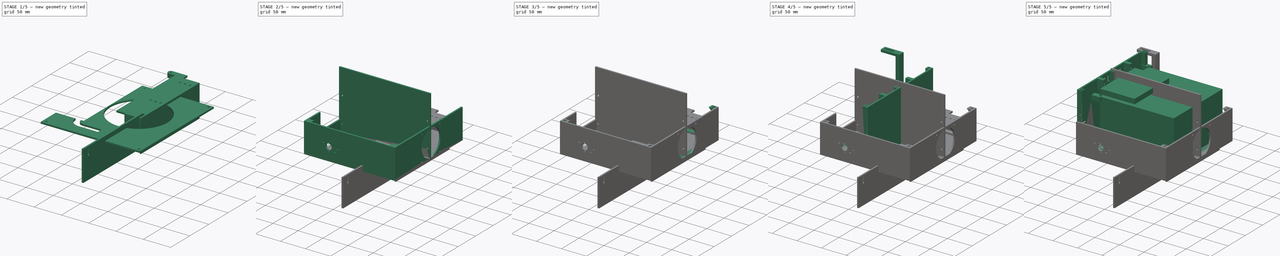
[diagram: build sequence overview — one tinted view per stage of 5, left to right]
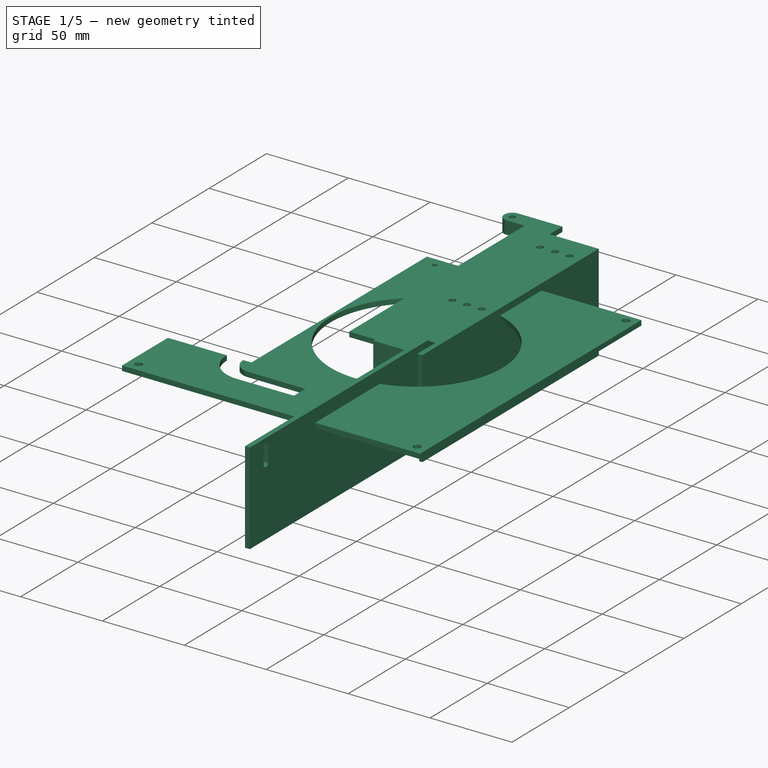
[diagram: stage 1 of 5 — iso view after this stage's code; geometry added in this stage tinted green]
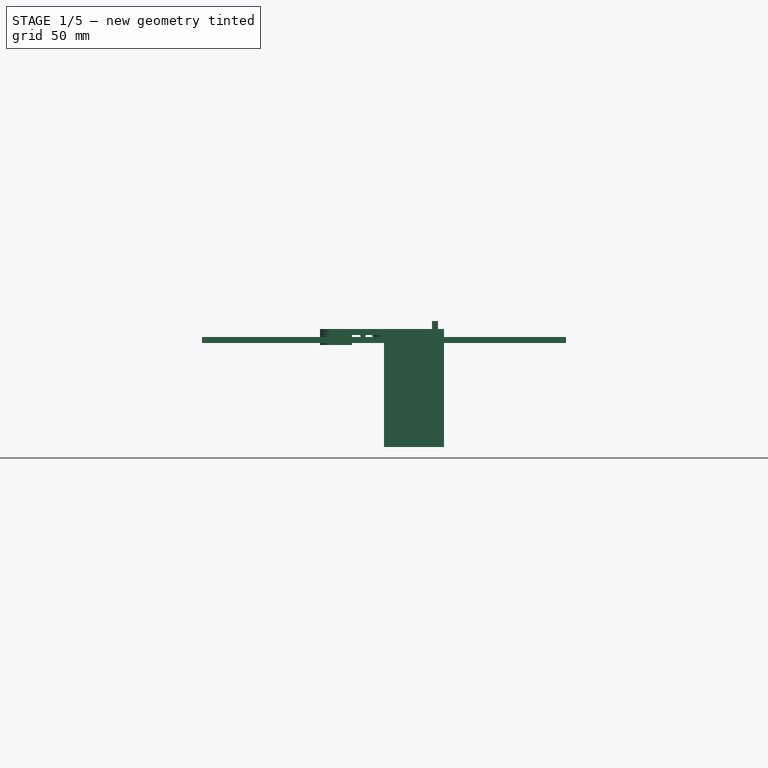
[diagram: stage 1 of 5 — front view after this stage's code; geometry added in this stage tinted green]
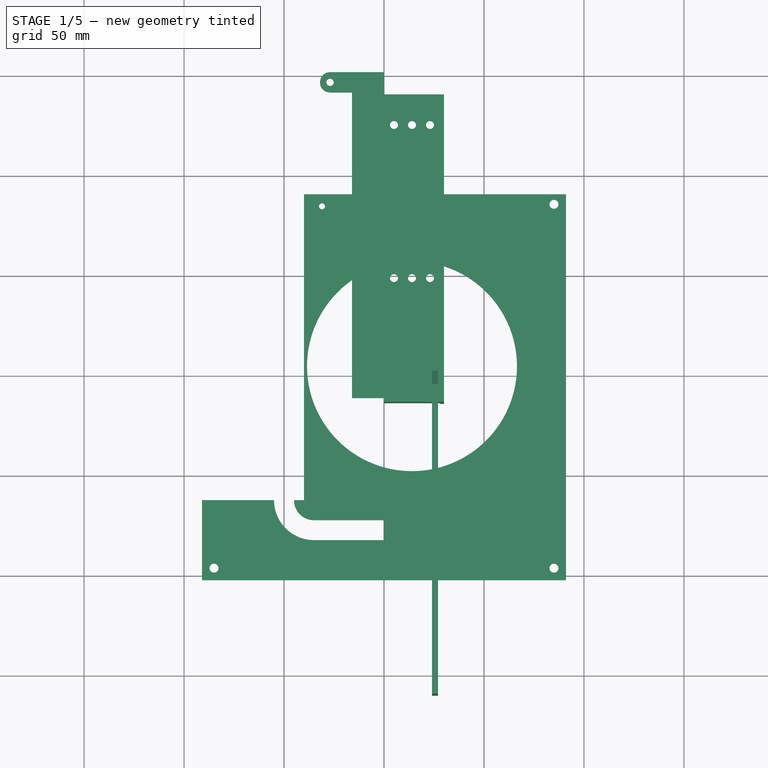
[diagram: stage 1 of 5 — top view after this stage's code; geometry added in this stage tinted green]
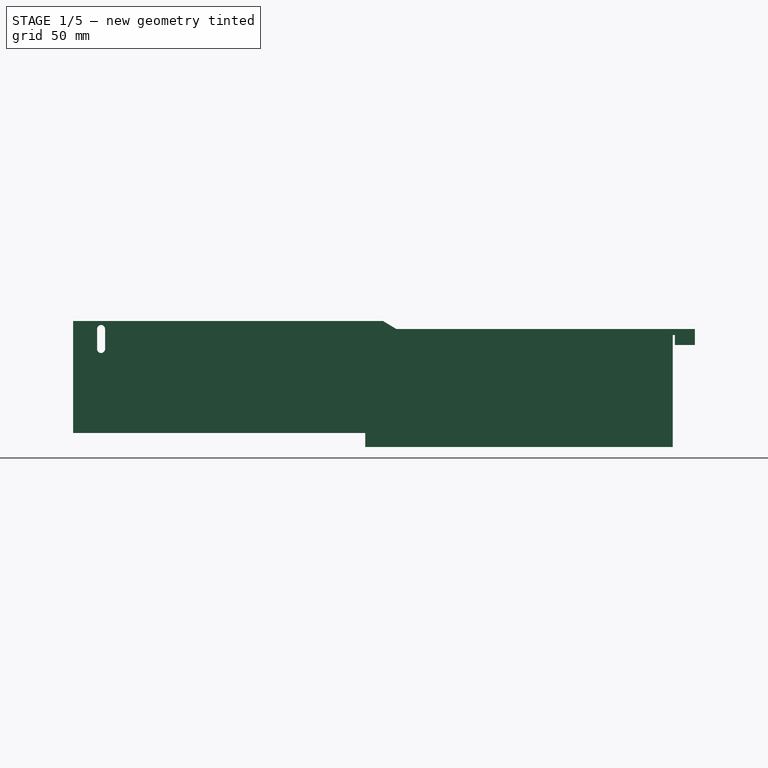
[diagram: stage 1 of 5 — right view after this stage's code; geometry added in this stage tinted green]
FCSTD DOCUMENT  (FreeCAD 0.19R24291 (Git))
Label: miniitx
License: All rights reserved
LicenseURL: http://en.wikipedia.org/wiki/All_rights_reserved
objects: Sketcher::SketchObject×58, PartDesign::Pad×30, PartDesign::Pocket×21, PartDesign::Body×14, PartDesign::LinearPattern×6, PartDesign::Mirrored×4, App::FeaturePython×2, Part::Mirroring×2, App::DocumentObjectGroup×2, PartDesign::Chamfer×1
note: 188 computed .brp shape members not serialized (recipe doc carries the construction recipe); baked Part::Feature solids carry a one-line shape summary decoded from their .brp

FEATURE [PartDesign::Body] Body010  label="covertop"
  Group = -> [Sketch243,Sketch244,Pad019,Pocket016,Sketch245,Pad020]
  Origin = -> Origin010
  Placement = pos=(0,0,185) rot=(0,0,1;0rad)
  Tip = -> Pad020
FEATURE [Sketcher::SketchObject] Sketch246
  FullyConstrained = true
  MapMode = 5
  Support = -> [XY_Plane010]
  sketch-geometry (5):
    g0: Circle CenterX=0 CenterY=0 CenterZ=0 NormalX=0 NormalY=0 NormalZ=1 AngleXU=0 Radius=1.85
    g1: ArcOfCircle CenterX=0 CenterY=0 CenterZ=0 NormalX=0 NormalY=0 NormalZ=1 AngleXU=0 Radius=5 StartAngle=1.5708 EndAngle=4.71239
    g2: LineSegment StartX=-9e-16 StartY=-5 StartZ=0 EndX=24 EndY=-5 EndZ=0
    g3: LineSegment StartX=-1.19e-14 StartY=5 StartZ=0 EndX=24 EndY=5 EndZ=0
    g4: LineSegment StartX=24 StartY=-5 StartZ=0 EndX=24 EndY=5 EndZ=0
  constraints (12):
    c: Coincident(g0,g-1)
    c: Diameter(g0) = 3.7
    c: Tangent(g1,g3) = 1.5708
    c: Tangent(g1,g2) = -1.5708
    c: Horizontal(g2)
    c: Coincident(g1,g0)
    c: DistanceY(g1,g1) = 10
    c: Horizontal(g3)
    c: Coincident(g4,g2)
    c: Coincident(g4,g3)
    c: Vertical(g4)
    c: DistanceX(g3,g3) = 24
FEATURE [PartDesign::Pad] Pad021
  Direction = (1,1,1)
  Length = 5
  Length2 = 100
  Profile = -> Sketch246
  Type = 0
FEATURE [Sketcher::SketchObject] Sketch247
  FullyConstrained = true
  MapMode = 5
  Placement = pos=(24,0,0) rot=(0.57735,0.57735,0.57735;2.0944rad)
  Support = -> [Pad021]
  sketch-geometry (7):
    g0: LineSegment StartX=-7 StartY=0 StartZ=0 EndX=5 EndY=0 EndZ=0
    g1: LineSegment StartX=-5 StartY=11 StartZ=0 EndX=-160 EndY=11 EndZ=0
    g2: LineSegment StartX=-160 StartY=11 StartZ=0 EndX=-160 EndY=-45 EndZ=0
    g3: LineSegment StartX=-160 StartY=-45 StartZ=0 EndX=-7 EndY=-45 EndZ=0
    g4: LineSegment StartX=-7 StartY=-45 StartZ=0 EndX=-7 EndY=0 EndZ=0
    g5: LineSegment StartX=-5 StartY=11 StartZ=0 EndX=5 EndY=5 EndZ=0
    g6: LineSegment StartX=5 StartY=5 StartZ=0 EndX=5 EndY=0 EndZ=0
  constraints (21):
    c: PointOnObject(g0,g-1)
    c: PointOnObject(g0,g-1)
    c: Horizontal(g1)
    c: Coincident(g2,g1)
    c: Vertical(g2)
    c: Coincident(g3,g2)
    c: Horizontal(g3)
    c: Coincident(g4,g3)
    c: Coincident(g4,g0)
    c: Vertical(g4)
    c: DistanceY(g0,g1) = 11
    c: DistanceY(g4,g4) = 45
    c: DistanceX(g-1,g0) = 5
    c: DistanceX(g0,g-1) = 7
    c: DistanceX(g1,g0) = 165
    c: Coincident(g1,g5)
    c: Coincident(g5,g6)
    c: Coincident(g6,g0)
    c: DistanceY(g0,g5) = 5
    c: Vertical(g6)
    c: DistanceX(g0,g1) = 2
FEATURE [PartDesign::Pad] Pad022
  BaseFeature = -> Pad021
  Direction = (1,1,1)
  Length = 3
  Length2 = 100
  Profile = -> Sketch247
  Type = 0
FEATURE [Sketcher::SketchObject] Sketch248
  FullyConstrained = true
  MapMode = 5
  Placement = pos=(27,0,0) rot=(0.57735,0.57735,0.57735;2.0944rad)
  Support = -> [Pad022]
  sketch-geometry (6):
    g0: ArcOfCircle CenterX=-146 CenterY=7 CenterZ=0 NormalX=0 NormalY=0 NormalZ=1 AngleXU=0 Radius=2 StartAngle=1e-16 EndAngle=3.14159
    g1: ArcOfCircle CenterX=-146 CenterY=-3 CenterZ=0 NormalX=0 NormalY=0 NormalZ=1 AngleXU=0 Radius=2 StartAngle=3.14159 EndAngle=6.28319
    g2: LineSegment StartX=-148 StartY=7 StartZ=0 EndX=-148 EndY=-3 EndZ=0
    g3: LineSegment StartX=-144 StartY=7 StartZ=0 EndX=-144 EndY=-3 EndZ=0
    g4: GeomPoint X=-6 Y=0 Z=0
    g5: GeomPoint X=0 Y=11 Z=0
  constraints (14):
    c: Tangent(g0,g3) = 1.5708
    c: Tangent(g0,g2) = -1.5708
    c: Tangent(g2,g1) = -1.5708
    c: Tangent(g3,g1) = 1.5708
    c: Vertical(g2)
    c: Equal(g0,g1)
    c: PointOnObject(g4,g-1)
    c: DistanceX(g4,g-1) = 6
    c: DistanceX(g1,g4) = 140
    c: Diameter(g0) = 4
    c: PointOnObject(g5,g-2)
    c: DistanceY(g-1,g5) = 11
    c: DistanceY(g1,g5) = 14
    c: DistanceY(g3,g3) = 10
FEATURE [PartDesign::Pocket] Pocket017
  BaseFeature = -> Pad022
  Length = 5
  Length2 = 100
  Profile = -> Sketch248
  Type = 0
FEATURE [Sketcher::SketchObject] Sketch249
  AttachmentOffset = pos=(0,0,5) rot=(0,0,1;0rad)
  FullyConstrained = true
  MapMode = 5
  Placement = pos=(0,-5,-1.1e-15) rot=(1,0,0;1.5708rad)
  Support = -> [XZ_Plane011]
  sketch-geometry (4):
    g0: LineSegment StartX=27 StartY=12 StartZ=0 EndX=10 EndY=12 EndZ=0
    g1: LineSegment StartX=10 StartY=12 StartZ=0 EndX=10 EndY=14 EndZ=0
    g2: LineSegment StartX=10 StartY=14 StartZ=0 EndX=27 EndY=14 EndZ=0
    g3: LineSegment StartX=27 StartY=14 StartZ=0 EndX=27 EndY=12 EndZ=0
  constraints (12):
    c: Coincident(g0,g1)
    c: Coincident(g1,g2)
    c: Coincident(g2,g3)
    c: Coincident(g3,g0)
    c: Horizontal(g0)
    c: Horizontal(g2)
    c: Vertical(g1)
    c: Vertical(g3)
    c: DistanceX(g2,g2) = 17
    c: DistanceX(g0) = 27
    c: DistanceY(g0) = 12
    c: DistanceY(g0,g1) = 2
FEATURE [PartDesign::Body] Body011  label="gpucover"
  Group = -> [Sketch246,Pad021,Sketch247,Pad022,Sketch248,Pocket017,Sketch249]
  Origin = -> Origin011
  Placement = pos=(-96,98,234) rot=(0,0,1;0rad)
  Tip = -> Pocket017
FEATURE [Sketcher::SketchObject] Sketch250
  FullyConstrained = true
  MapMode = 5
  Placement = pos=(0,0,0) rot=(0.57735,0.57735,0.57735;2.0944rad)
  Support = -> [YZ_Plane012]
  sketch-geometry (5):
    g0: Circle CenterX=0 CenterY=0 CenterZ=0 NormalX=0 NormalY=0 NormalZ=1 AngleXU=0 Radius=1.75
    g1: LineSegment StartX=-4 StartY=4 StartZ=0 EndX=4 EndY=4 EndZ=0
    g2: LineSegment StartX=4 StartY=4 StartZ=0 EndX=4 EndY=-4 EndZ=0
    g3: LineSegment StartX=4 StartY=-4 StartZ=0 EndX=-4 EndY=-4 EndZ=0
    g4: LineSegment StartX=-4 StartY=-4 StartZ=0 EndX=-4 EndY=4 EndZ=0
  constraints (12):
    c: Coincident(g0,g-1)
    c: Diameter(g0) = 3.5
    c: Coincident(g1,g2)
    c: Coincident(g2,g3)
    c: Coincident(g3,g4)
    c: Coincident(g4,g1)
    c: Horizontal(g3)
    c: Vertical(g4)
    c: Symmetric(g2,g1,g-1)
    c: Symmetric(g1,g1,g-2)
    c: DistanceX(g1,g1) = 8
    c: DistanceY(g2,g2) = 8
FEATURE [PartDesign::Pad] Pad023  label="lockrx550"
  Direction = (1,1,1)
  Length = 3
  Length2 = 100
  Placement = pos=(0,0,0) rot=(0.57735,0.57735,0.57735;2.0944rad)
  Profile = -> Sketch250
  Type = 0
FEATURE [Sketcher::SketchObject] Sketch252
  AttachmentOffset = pos=(0,0,4) rot=(0,0,1;0rad)
  FullyConstrained = true
  MapMode = 5
  Placement = pos=(0,0,4) rot=(0,0,1;0rad)
  Support = -> [XY_Plane011]
  sketch-geometry (17):
    g0: LineSegment StartX=5 StartY=48 StartZ=0 EndX=14 EndY=48 EndZ=0
    g1: LineSegment StartX=14 StartY=48 StartZ=0 EndX=14 EndY=124.6 EndZ=0
    g2: LineSegment StartX=14 StartY=124.6 StartZ=0 EndX=5 EndY=124.6 EndZ=0
    g3: LineSegment StartX=5 StartY=124.6 StartZ=0 EndX=5 EndY=48 EndZ=0
    g4: LineSegment StartX=23 StartY=124.6 StartZ=0 EndX=23 EndY=48 EndZ=0
    g5: LineSegment StartX=14 StartY=48 StartZ=0 EndX=23 EndY=48 EndZ=0
    g6: LineSegment StartX=14 StartY=124.6 StartZ=0 EndX=23 EndY=124.6 EndZ=0
    g7: Circle CenterX=5 CenterY=48 CenterZ=0 NormalX=0 NormalY=0 NormalZ=1 AngleXU=0 Radius=2
    g8: Circle CenterX=14 CenterY=48 CenterZ=0 NormalX=0 NormalY=0 NormalZ=1 AngleXU=0 Radius=2
    g9: Circle CenterX=23 CenterY=48 CenterZ=0 NormalX=0 NormalY=0 NormalZ=1 AngleXU=0 Radius=2
    g10: Circle CenterX=23 CenterY=124.6 CenterZ=0 NormalX=0 NormalY=0 NormalZ=1 AngleXU=0 Radius=2
    g11: Circle CenterX=14 CenterY=124.6 CenterZ=0 NormalX=0 NormalY=0 NormalZ=1 AngleXU=0 Radius=2
    g12: Circle CenterX=5 CenterY=124.6 CenterZ=0 NormalX=0 NormalY=0 NormalZ=1 AngleXU=0 Radius=2
    g13: LineSegment StartX=-16 StartY=-12 StartZ=0 EndX=28 EndY=-12 EndZ=0
    g14: LineSegment StartX=28 StartY=-12 StartZ=0 EndX=28 EndY=138 EndZ=0
    g15: LineSegment StartX=28 StartY=138 StartZ=0 EndX=-16 EndY=138 EndZ=0
    g16: LineSegment StartX=-16 StartY=138 StartZ=0 EndX=-16 EndY=-12 EndZ=0
  constraints (41):
    c: Coincident(g0,g1)
    c: Coincident(g1,g2)
    c: Coincident(g2,g3)
    c: Coincident(g3,g0)
    c: Horizontal(g0)
    c: Horizontal(g2)
    c: Vertical(g1)
    c: Vertical(g3)
    c: DistanceY(g-1,g0) = 48
    c: DistanceX(g-1,g0) = 5
    c: DistanceY(g3,g3) = 76.6
    c: DistanceX(g0,g0) = 9
    c: Vertical(g4)
    c: Coincident(g5,g0)
    c: Coincident(g5,g4)
    c: Coincident(g6,g1)
    c: Coincident(g6,g4)
    c: Horizontal(g6)
    c: Horizontal(g5)
    c: Equal(g5,g0)
    c: Coincident(g7,g0)
    c: Coincident(g8,g5)
    c: Coincident(g9,g5)
    c: Coincident(g11,g1)
    c: Coincident(g12,g2)
    c: Diameter(g7) = 4
    c: Equal(g7, g8-g12) x5
    c: Coincident(g13,g14)
    c: Coincident(g14,g15)
    c: Coincident(g15,g16)
    c: Coincident(g16,g13)
    c: Horizontal(g13)
    c: Horizontal(g15)
    c: Vertical(g14)
    c: Vertical(g16)
    c: DistanceY(g13,g-1) = 12
    c: DistanceX(g13,g-1) = 16
    c: DistanceY(g16,g16) = 150
    c: Coincident(g10,g4)
    c: DistanceX(g10,g14) = 5
    c: DistanceY(g10,g14) = 13.4
FEATURE [PartDesign::Pad] Pad024  label="atas"
  BaseFeature = -> Pad023
  Direction = (1,1,1)
  Length = 3
  Length2 = 100
  Placement = pos=(0,0,0) rot=(0.57735,0.57735,0.57735;2.0944rad)
  Profile = -> Sketch252
  Type = 0
FEATURE [Sketcher::SketchObject] Sketch253
  AttachmentOffset = pos=(0,0,7) rot=(0,0,1;0rad)
  FullyConstrained = true
  MapMode = 5
  Placement = pos=(0,0,7) rot=(0,0,1;0rad)
  Support = -> [XY_Plane011]
  sketch-geometry (8):
    g0: LineSegment StartX=0 StartY=139.9 StartZ=0 EndX=0 EndY=138 EndZ=0
    g1: LineSegment StartX=0 StartY=138 StartZ=0 EndX=28 EndY=138 EndZ=0
    g2: LineSegment StartX=28 StartY=138 StartZ=0 EndX=28 EndY=-12 EndZ=0
    g3: LineSegment StartX=28 StartY=-12 StartZ=0 EndX=0 EndY=-12 EndZ=0
    g4: LineSegment StartX=0 StartY=-12 StartZ=0 EndX=0 EndY=-13.9 EndZ=0
    g5: LineSegment StartX=0 StartY=-13.9 StartZ=0 EndX=30 EndY=-13.9 EndZ=0
    g6: LineSegment StartX=30 StartY=-13.9 StartZ=0 EndX=30 EndY=139.9 EndZ=0
    g7: LineSegment StartX=30 StartY=139.9 StartZ=0 EndX=0 EndY=139.9 EndZ=0
  constraints (24):
    c: PointOnObject(g0,g-2)
    c: PointOnObject(g0,g-2)
    c: Coincident(g0,g1)
    c: Horizontal(g1)
    c: Coincident(g1,g2)
    c: Vertical(g2)
    c: Coincident(g2,g3)
    c: PointOnObject(g3,g-2)
    c: Horizontal(g3)
    c: Coincident(g3,g4)
    c: PointOnObject(g4,g-2)
    c: Coincident(g4,g5)
    c: Horizontal(g5)
    c: Coincident(g5,g6)
    c: Vertical(g6)
    c: Coincident(g6,g7)
    c: Coincident(g7,g0)
    c: Horizontal(g7)
    c: DistanceY(g3,g-1) = 12
    c: DistanceY(g4,g3) = 1.9
    c: Equal(g4,g0)
    c: DistanceX(g2,g5) = 2
    c: DistanceY(g2,g2) = 150
    c: DistanceX(g3,g3) = 28
FEATURE [PartDesign::Pad] Pad025  label="wall001"
  BaseFeature = -> Pad024
  Direction = (1,1,1)
  Length = 59
  Length2 = 100
  Placement = pos=(0,0,0) rot=(0.57735,0.57735,0.57735;2.0944rad)
  Profile = -> Sketch253
  Reversed = true
  Type = 0
FEATURE [Sketcher::SketchObject] Sketch254
  AttachmentOffset = pos=(0,0,-100) rot=(0,0,1;0rad)
  FullyConstrained = true
  MapMode = 5
  Placement = pos=(0,100,2.22e-14) rot=(1,0,0;1.5708rad)
  Support = -> [XZ_Plane012]
  sketch-geometry (5):
    g0: ArcOfCircle CenterX=-4.6 CenterY=4 CenterZ=0 NormalX=0 NormalY=0 NormalZ=1 AngleXU=0 Radius=1.4 StartAngle=3.14159 EndAngle=6.28319
    g1: LineSegment StartX=-6 StartY=4 StartZ=0 EndX=-3.2 EndY=4 EndZ=0
    g2: ArcOfCircle CenterX=-10.5 CenterY=4 CenterZ=0 NormalX=0 NormalY=0 NormalZ=1 AngleXU=0 Radius=1.4 StartAngle=3.14159 EndAngle=6.28319
    g3: LineSegment StartX=-11.9 StartY=4 StartZ=0 EndX=-3.2 EndY=4 EndZ=0
    g4: LineSegment StartX=-11.9 StartY=4 StartZ=0 EndX=-9.1 EndY=4 EndZ=0
  constraints (16):
    c: DistanceX(g0) = -4.6
    c: DistanceY(g0) = 4
    c: Diameter(g0) = 2.8
    c: Coincident(g1,g0)
    c: Coincident(g1,g0)
    c: Horizontal(g1)
    c: PointOnObject(g0,g1)
    c: Coincident(g3,g2)
    c: Coincident(g3,g0)
    c: Horizontal(g3)
    c: PointOnObject(g2,g3)
    c: PointOnObject(g2,g3)
    c: Equal(g2,g0)
    c: DistanceX(g2) = -9.1
    c: Coincident(g4,g2)
    c: Coincident(g4,g2)
FEATURE [PartDesign::Pad] Pad026  label="ganjel"
  BaseFeature = -> Pad025
  Direction = (1,1,1)
  Length = 30
  Length2 = 100
  Placement = pos=(0,0,0) rot=(0.57735,0.57735,0.57735;2.0944rad)
  Profile = -> Sketch254
  Reversed = true
  Type = 0
FEATURE [Sketcher::SketchObject] Sketch255
  AttachmentOffset = pos=(0,0,4) rot=(0,0,1;0rad)
  FullyConstrained = true
  MapMode = 5
  Placement = pos=(0,0,4) rot=(0,0,1;0rad)
  Support = -> [XY_Plane011]
  sketch-geometry (4):
    g0: LineSegment StartX=-16 StartY=138 StartZ=0 EndX=0 EndY=138 EndZ=0
    g1: LineSegment StartX=0 StartY=138 StartZ=0 EndX=0 EndY=151 EndZ=0
    g2: LineSegment StartX=0 StartY=151 StartZ=0 EndX=-16 EndY=151 EndZ=0
    g3: LineSegment StartX=-16 StartY=151 StartZ=0 EndX=-16 EndY=138 EndZ=0
  constraints (12):
    c: Coincident(g0,g1)
    c: Coincident(g1,g2)
    c: Coincident(g2,g3)
    c: Coincident(g3,g0)
    c: Horizontal(g0)
    c: Horizontal(g2)
    c: Vertical(g1)
    c: Vertical(g3)
    c: DistanceY(g0) = 138
    c: DistanceX(g2,g2) = 16
    c: DistanceY(g3,g3) = 13
    c: PointOnObject(g0,g-2)
FEATURE [Sketcher::SketchObject] Sketch256
  AttachmentOffset = pos=(0,0,4) rot=(0,0,1;0rad)
  FullyConstrained = true
  MapMode = 5
  Placement = pos=(0,0,4) rot=(0,0,1;0rad)
  Support = -> [XY_Plane011]
  sketch-geometry (5):
    g0: LineSegment StartX=-16 StartY=141 StartZ=0 EndX=-27 EndY=141 EndZ=0
    g1: ArcOfCircle CenterX=-27 CenterY=146 CenterZ=0 NormalX=0 NormalY=0 NormalZ=1 AngleXU=0 Radius=5 StartAngle=1.5708 EndAngle=4.71239
    g2: LineSegment StartX=-27 StartY=151 StartZ=0 EndX=-16 EndY=151 EndZ=0
    g3: Circle CenterX=-27 CenterY=146 CenterZ=0 NormalX=0 NormalY=0 NormalZ=1 AngleXU=0 Radius=1.85
    g4: LineSegment StartX=-16 StartY=151 StartZ=0 EndX=-16 EndY=141 EndZ=0
  constraints (15):
    c: Horizontal(g0)
    c: Coincident(g1,g0)
    c: Coincident(g2,g1)
    c: Horizontal(g2)
    c: DistanceX(g0,g0) = 11
    c: DistanceX(g1) = -27
    c: DistanceY(g1) = 146
    c: Vertical(g0,g1)
    c: Vertical(g0,g1)
    c: Diameter(g1) = 10
    c: Coincident(g3,g1)
    c: Diameter(g3) = 3.7
    c: Coincident(g4,g2)
    c: Coincident(g4,g0)
    c: Vertical(g4)
FEATURE [PartDesign::Pad] Pad027  label="mount1"
  BaseFeature = -> Pad026
  Direction = (1,1,1)
  Length = 3
  Length2 = 100
  Placement = pos=(0,0,0) rot=(0.57735,0.57735,0.57735;2.0944rad)
  Profile = -> Sketch255
  Type = 0
FEATURE [PartDesign::Pad] Pad028  label="mount2"
  BaseFeature = -> Pad027
  Direction = (1,1,1)
  Length = 3
  Length2 = 5
  Placement = pos=(0,0,0) rot=(0.57735,0.57735,0.57735;2.0944rad)
  Profile = -> Sketch256
  Type = 4
FEATURE [Sketcher::SketchObject] Sketch257
  AttachmentOffset = pos=(0,0,14) rot=(0,0,1;0rad)
  FullyConstrained = true
  MapMode = 5
  Placement = pos=(0,-14,-3.1e-15) rot=(1,0,0;1.5708rad)
  Support = -> [XZ_Plane012]
  sketch-geometry (4):
    g0: LineSegment StartX=28 StartY=-53 StartZ=0 EndX=-4 EndY=-53 EndZ=0
    g1: LineSegment StartX=-4 StartY=-53 StartZ=0 EndX=-4 EndY=-34 EndZ=0
    g2: LineSegment StartX=-4 StartY=-34 StartZ=0 EndX=28 EndY=-34 EndZ=0
    g3: LineSegment StartX=28 StartY=-34 StartZ=0 EndX=28 EndY=-53 EndZ=0
  constraints (12):
    c: Coincident(g0,g1)
    c: Coincident(g1,g2)
    c: Coincident(g2,g3)
    c: Coincident(g3,g0)
    c: Horizontal(g0)
    c: Horizontal(g2)
    c: Vertical(g1)
    c: Vertical(g3)
    c: DistanceX(g0) = -4
    c: DistanceY(g0) = -53
    c: DistanceX(g0,g0) = 32
    c: DistanceY(g3,g3) = 19
FEATURE [PartDesign::Pocket] Pocket018
  BaseFeature = -> Pad028
  Length = 5
  Length2 = 100
  Placement = pos=(0,0,0) rot=(0.57735,0.57735,0.57735;2.0944rad)
  Profile = -> Sketch257
  Type = 0
FEATURE [PartDesign::Body] Body012  label="hddgpu"
  Group = -> [Sketch250,Pad023,Sketch252,Pad024,Sketch253,Pad025,Sketch254,Pad026,Sketch255,Sketch256,Pad027,Pad028,Sketch257,Pocket018]
  Origin = -> Origin012
  Placement = pos=(-69,-48,241) rot=(0,0,1;0rad)
  Tip = -> Pocket018
FEATURE [Sketcher::SketchObject] Sketch258
  FullyConstrained = true
  MapMode = 5
  sketch-geometry (5):
    g0: ArcOfCircle CenterX=14 CenterY=4 CenterZ=0 NormalX=0 NormalY=0 NormalZ=1 AngleXU=0 Radius=52.5 StartAngle=1.58032 EndAngle=7.84446
    g1: LineSegment StartX=-38.5 StartY=4 StartZ=0 EndX=66.5 EndY=4 EndZ=0
    g2: GeomPoint X=88 Y=0 Z=0
    g3: GeomPoint X=0 Y=-100 Z=0
    g4: LineSegment StartX=13.5 StartY=56.4976 StartZ=0 EndX=14.5 EndY=56.4976 EndZ=0
  constraints (15):
    c: Diameter(g0) = 105
    c: PointOnObject(g1,g0)
    c: PointOnObject(g1,g0)
    c: PointOnObject(g0,g1)
    c: Horizontal(g1)
    c: PointOnObject(g2,g-1)
    c: DistanceX(g2) = 88
    c: DistanceX(g1,g2) = 21.5
    c: PointOnObject(g3,g-2)
    c: DistanceY(g3) = -100
    c: DistanceY(g3,g0) = 104
    c: Coincident(g4,g0)
    c: Coincident(g4,g0)
    c: Horizontal(g4)
    c: DistanceX(g4,g4) = 1
FEATURE [Sketcher::SketchObject] Sketch259
  FullyConstrained = true
  MapMode = 5
  Support = -> [XY_Plane012]
  sketch-geometry (11):
    g0: LineSegment StartX=91 StartY=90 StartZ=0 EndX=-40 EndY=90 EndZ=0
    g1: Circle CenterX=85 CenterY=85 CenterZ=0 NormalX=0 NormalY=0 NormalZ=1 AngleXU=0 Radius=2.25
    g2: Circle CenterX=85 CenterY=-97 CenterZ=0 NormalX=0 NormalY=0 NormalZ=1 AngleXU=0 Radius=2.25
    g3: Circle CenterX=-85 CenterY=-97 CenterZ=0 NormalX=0 NormalY=0 NormalZ=1 AngleXU=0 Radius=2.25
    g4: GeomPoint X=-91 Y=-63 Z=0
    g5: LineSegment StartX=-91 StartY=-103 StartZ=0 EndX=-91 EndY=-63 EndZ=0
    g6: LineSegment StartX=-40 StartY=-63 StartZ=0 EndX=-91 EndY=-63 EndZ=0
    g7: LineSegment StartX=-40 StartY=-63 StartZ=0 EndX=-40 EndY=90 EndZ=0
    g8: LineSegment StartX=91 StartY=90 StartZ=0 EndX=91 EndY=-103 EndZ=0
    g9: LineSegment StartX=91 StartY=-103 StartZ=0 EndX=-91 EndY=-103 EndZ=0
    g10: Circle CenterX=-31 CenterY=84 CenterZ=0 NormalX=0 NormalY=0 NormalZ=1 AngleXU=0 Radius=1.5
  constraints (31):
    c: Diameter(g1) = 4.5
    c: Equal(g1,g2)
    c: Equal(g1,g3)
    c: DistanceX(g4) = -91
    c: DistanceX(g4,g6) = 51
    c: Horizontal(g6,g4)
    c: Coincident(g5,g4)
    c: Coincident(g6,g5)
    c: Coincident(g6,g7)
    c: Vertical(g7)
    c: DistanceX(g3) = -85
    c: DistanceY(g3) = -97
    c: DistanceX(g2) = 85
    c: DistanceY(g2) = -97
    c: DistanceX(g1) = 85
    c: DistanceY(g1) = 85
    c: Vertical(g5)
    c: Coincident(g0,g7)
    c: Horizontal(g0)
    c: Coincident(g8,g0)
    c: Vertical(g8)
    c: Coincident(g9,g8)
    c: Coincident(g9,g5)
    c: Horizontal(g9)
    c: DistanceY(g8,g8) = 193
    c: DistanceY(g-1,g0) = 90
    c: DistanceY(g7,g7) = 153
    c: DistanceX(g-1,g0) = 91
    c: DistanceX(g10) = -31
    c: DistanceY(g10) = 84
    c: Diameter(g10) = 3
FEATURE [PartDesign::Pad] Pad029
  Direction = (1,1,1)
  Length = 3
  Length2 = 100
  Profile = -> Sketch259
  Type = 0
FEATURE [PartDesign::Pocket] Pocket019
  BaseFeature = -> Pad029
  Length = 5
  Length2 = 100
  Midplane = true
  Profile = -> Sketch258
  Type = 1
FEATURE [Sketcher::SketchObject] Sketch260
  AttachmentOffset = pos=(0,0,3) rot=(0,0,1;0rad)
  FullyConstrained = true
  MapMode = 5
  Placement = pos=(0,0,3) rot=(0,0,1;0rad)
  Support = -> [XY_Plane012]
  sketch-geometry (6):
    g0: ArcOfCircle CenterX=-35 CenterY=-63 CenterZ=0 NormalX=0 NormalY=0 NormalZ=1 AngleXU=0 Radius=20 StartAngle=3.14159 EndAngle=4.71239
    g1: ArcOfCircle CenterX=-35 CenterY=-63 CenterZ=0 NormalX=0 NormalY=0 NormalZ=1 AngleXU=0 Radius=10 StartAngle=3.14159 EndAngle=4.71239
    g2: LineSegment StartX=-35 StartY=-73 StartZ=0 EndX=0 EndY=-73 EndZ=0
    g3: LineSegment StartX=0 StartY=-83 StartZ=0 EndX=-35 EndY=-83 EndZ=0
    g4: LineSegment StartX=-55 StartY=-63 StartZ=0 EndX=-45 EndY=-63 EndZ=0
    g5: LineSegment StartX=0 StartY=-73 StartZ=0 EndX=0 EndY=-83 EndZ=0
  constraints (19):
    c: DistanceX(g0) = -35
    c: DistanceY(g0) = -63
    c: Coincident(g1,g0)
    c: Coincident(g2,g1)
    c: PointOnObject(g2,g-2)
    c: Horizontal(g2)
    c: PointOnObject(g3,g-2)
    c: Coincident(g3,g0)
    c: Horizontal(g3)
    c: Coincident(g4,g0)
    c: Coincident(g4,g1)
    c: Horizontal(g4)
    c: Coincident(g5,g2)
    c: Coincident(g5,g3)
    c: Horizontal(g1,g0)
    c: Vertical(g0,g1)
    c: DistanceX(g1,g0) = 10
    c: DistanceX(g4,g4) = 10
    c: Vertical(g0,g1)
FEATURE [PartDesign::Pocket] Pocket020
  BaseFeature = -> Pocket019
  Length = 5
  Length2 = 100
  Profile = -> Sketch260
  Type = 0
FEATURE [PartDesign::Body] Body013  label="covertopnew"
  Group = -> [Sketch258,Sketch259,Pad029,Pocket019,Sketch260,Pocket020]
  Origin = -> Origin013
  Placement = pos=(0,0,185) rot=(0,0,1;0rad)
  Tip = -> Pocket020
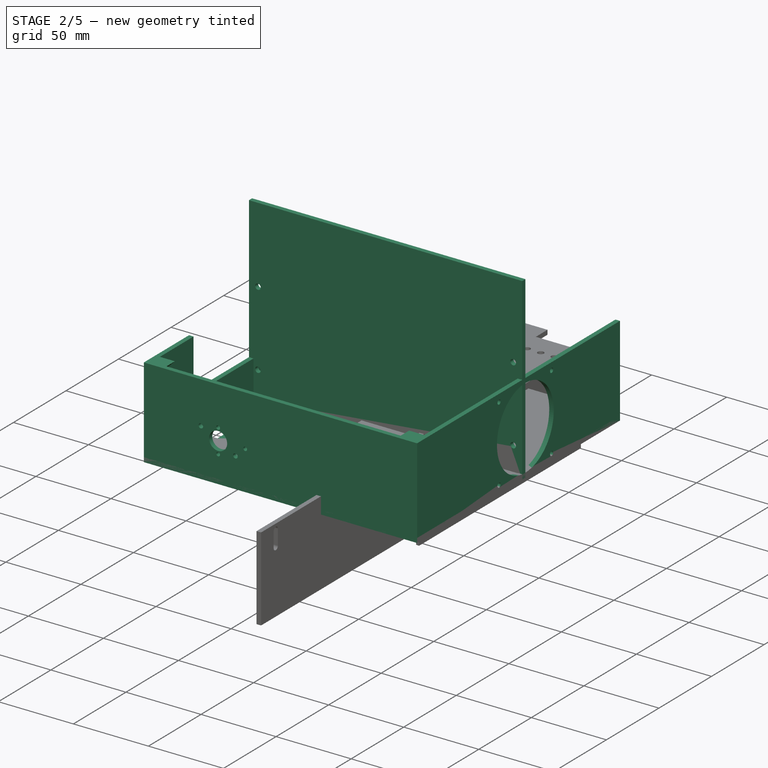
[diagram: stage 2 of 5 — iso view after this stage's code; geometry added in this stage tinted green]
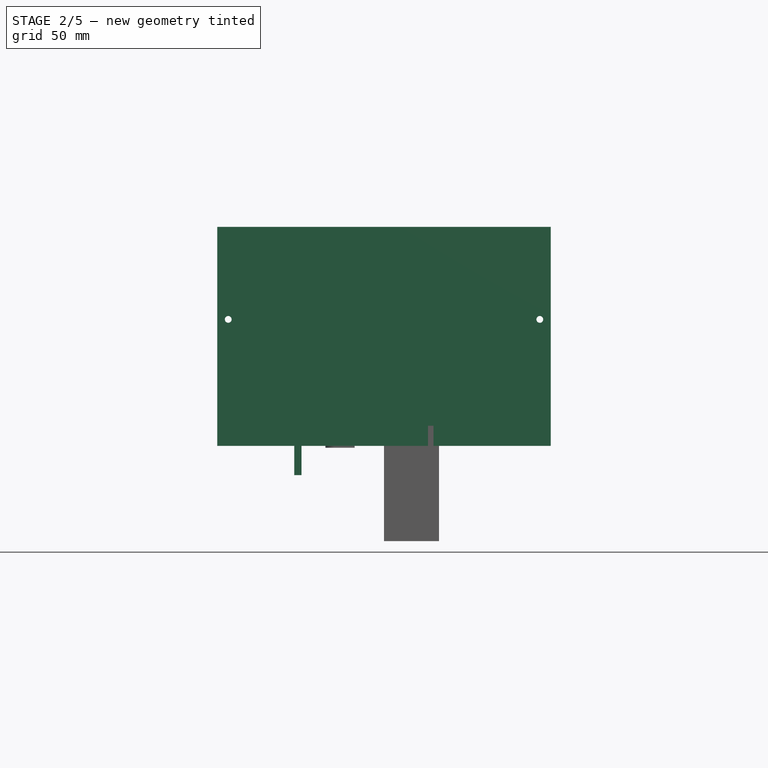
[diagram: stage 2 of 5 — front view after this stage's code; geometry added in this stage tinted green]
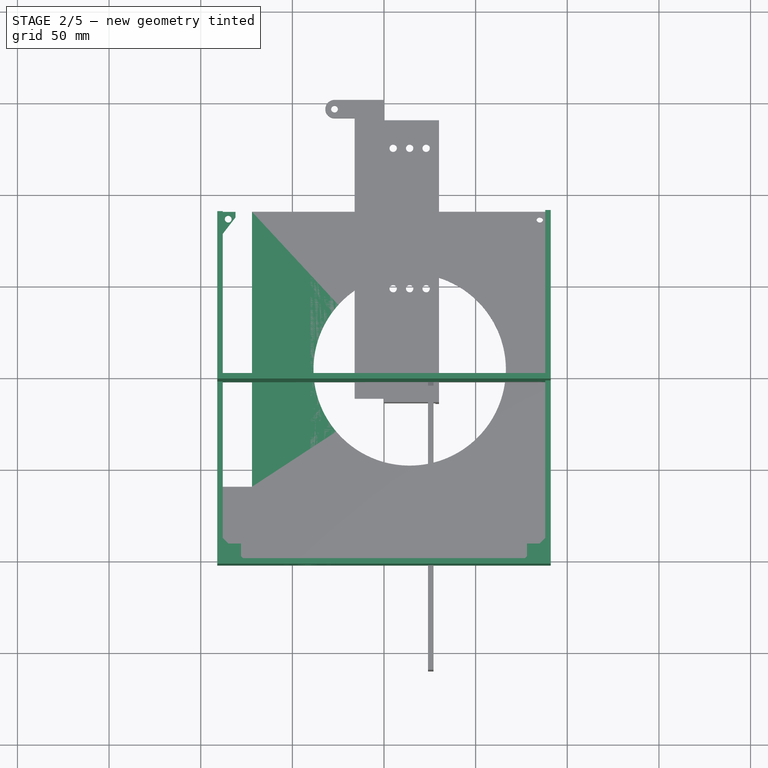
[diagram: stage 2 of 5 — top view after this stage's code; geometry added in this stage tinted green]
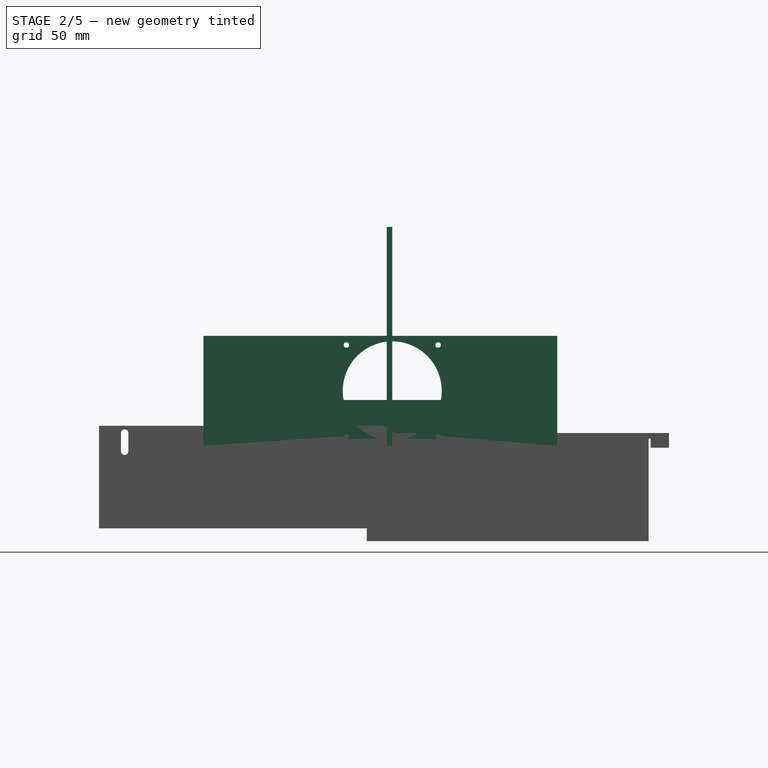
[diagram: stage 2 of 5 — right view after this stage's code; geometry added in this stage tinted green]
FEATURE [PartDesign::Body] Body006  label="mobo-bed"
  Group = -> [Sketch158,Pad009,Mirrored,Sketch159,Sketch160,Pad010,Pocket006,Sketch161,Pocket007,Sketch162,Sketch163,Pad011,Sketch165,Sketch166,Pad012,Sketch167,Pocket008,Chamfer]
  Origin = -> Origin006
  Placement = pos=(0,2,118) rot=(0,0,1;0rad)
  Tip = -> Chamfer
FEATURE [Sketcher::SketchObject] Sketch168
  FullyConstrained = true
  MapMode = 5
  Support = -> [XY_Plane006]
  sketch-geometry (6):
    g0: LineSegment StartX=88 StartY=90 StartZ=0 EndX=91 EndY=90 EndZ=0
    g1: LineSegment StartX=91 StartY=90 StartZ=0 EndX=91 EndY=-103 EndZ=0
    g2: LineSegment StartX=88 StartY=-100 StartZ=0 EndX=88 EndY=90 EndZ=0
    g3: LineSegment StartX=88 StartY=-100 StartZ=0 EndX=0 EndY=-100 EndZ=0
    g4: LineSegment StartX=0 StartY=-100 StartZ=0 EndX=0 EndY=-103 EndZ=0
    g5: LineSegment StartX=0 StartY=-103 StartZ=0 EndX=91 EndY=-103 EndZ=0
  constraints (18):
    c: Coincident(g0,g1)
    c: Coincident(g2,g0)
    c: Horizontal(g0)
    c: Vertical(g1)
    c: Vertical(g2)
    c: Horizontal(g3)
    c: Coincident(g4,g3)
    c: PointOnObject(g4,g-2)
    c: Coincident(g5,g4)
    c: Coincident(g5,g1)
    c: Horizontal(g5)
    c: Vertical(g4)
    c: DistanceX(g0) = 88
    c: DistanceY(g0) = 90
    c: Equal(g0,g4)
    c: DistanceY(g1,g1) = 193
    c: DistanceX(g5,g5) = 91
    c: Coincident(g2,g3)
FEATURE [PartDesign::Pad] Pad013  label="wall"
  Direction = (1,1,1)
  Length = 60
  Length2 = 100
  Profile = -> Sketch168
  Type = 0
FEATURE [Sketcher::SketchObject] Sketch169
  FullyConstrained = true
  MapMode = 5
  Support = -> [XY_Plane006]
  sketch-geometry (9):
    g0: LineSegment StartX=81 StartY=90 StartZ=0 EndX=88 EndY=90 EndZ=0
    g1: LineSegment StartX=88 StartY=90 StartZ=0 EndX=88 EndY=78 EndZ=0
    g2: LineSegment StartX=81 StartY=87 StartZ=0 EndX=81 EndY=90 EndZ=0
    g3: LineSegment StartX=81 StartY=87 StartZ=0 EndX=88 EndY=78 EndZ=0
    g4: Circle CenterX=85 CenterY=86 CenterZ=0 NormalX=0 NormalY=0 NormalZ=1 AngleXU=0 Radius=1.85
    g5: LineSegment StartX=88 StartY=-100 StartZ=0 EndX=88 EndY=-88 EndZ=0
    g6: LineSegment StartX=88 StartY=-88 StartZ=0 EndX=76 EndY=-100 EndZ=0
    g7: LineSegment StartX=76 StartY=-100 StartZ=0 EndX=88 EndY=-100 EndZ=0
    g8: Circle CenterX=85 CenterY=-96 CenterZ=0 NormalX=0 NormalY=0 NormalZ=1 AngleXU=0 Radius=1.85
  constraints (27):
    c: Coincident(g0,g1)
    c: Coincident(g2,g0)
    c: Horizontal(g0)
    c: Vertical(g1)
    c: Vertical(g2)
    c: DistanceX(g0) = 81
    c: DistanceY(g0) = 90
    c: Coincident(g3,g2)
    c: Coincident(g3,g1)
    c: DistanceX(g0,g0) = 7
    c: DistanceY(g1,g1) = 12
    c: DistanceY(g2,g2) = 3
    c: DistanceX(g4) = 85
    c: DistanceY(g4) = 86
    c: Diameter(g4) = 3.7
    c: Vertical(g5)
    c: Coincident(g5,g6)
    c: Coincident(g6,g7)
    c: Coincident(g7,g5)
    c: Horizontal(g7)
    c: DistanceX(g8) = 85
    c: DistanceY(g8) = -96
    c: DistanceX(g8,g5) = 3
    c: DistanceY(g8,g5) = -4
    c: Equal(g7,g5)
    c: DistanceX(g7,g7) = 12
    c: Equal(g4,g8)
FEATURE [PartDesign::Pad] Pad014  label="sekrup"
  BaseFeature = -> Pad013
  Direction = (1,1,1)
  Length = 2.5
  Length2 = 100
  Profile = -> Sketch169
  Type = 0
FEATURE [PartDesign::Mirrored] Mirrored001  label="wall-mirror"
  BaseFeature = -> Pad014
  MirrorPlane = -> Sketch168 [V_Axis]
  Originals = -> [Pad013]
FEATURE [PartDesign::Mirrored] Mirrored002  label="sekrup-mirror"
  BaseFeature = -> Mirrored001
  MirrorPlane = -> Sketch169 [V_Axis]
  Originals = -> [Pad014]
FEATURE [PartDesign::Pad] Pad015  label="sekrupblkgpad"
  BaseFeature = -> Mirrored002
  Direction = (1,1,1)
  Length = 3
  Length2 = 100
  Profile = -> Mirrored002 [Face27,Face10]
  Type = 0
FEATURE [Sketcher::SketchObject] Sketch170
  AttachmentOffset = pos=(0,0,-91) rot=(0,1,0;3.14159rad)
  FullyConstrained = true
  MapMode = 5
  Placement = pos=(-91,2.02e-14,-2.02e-14) rot=(-0.57735,0.57735,0.57735;4.18879rad)
  Support = -> [YZ_Plane007]
  sketch-geometry (5):
    g0: LineSegment StartX=-155 StartY=75 StartZ=0 EndX=60 EndY=75 EndZ=0
    g1: LineSegment StartX=60 StartY=75 StartZ=0 EndX=60 EndY=25 EndZ=0
    g2: LineSegment StartX=60 StartY=25 StartZ=0 EndX=-155 EndY=25 EndZ=0
    g3: LineSegment StartX=-155 StartY=25 StartZ=0 EndX=-155 EndY=75 EndZ=0
    g4: GeomPoint X=100 Y=0 Z=0
  constraints (14):
    c: Coincident(g0,g1)
    c: Coincident(g1,g2)
    c: Coincident(g2,g3)
    c: Coincident(g3,g0)
    c: Horizontal(g0)
    c: Vertical(g1)
    c: Vertical(g3)
    c: DistanceX(g2,g2) = 215
    c: DistanceY(g-1,g2) = 25
    c: DistanceY(g1,g1) = 50
    c: Horizontal(g2)
    c: PointOnObject(g4,g-1)
    c: DistanceX(g4) = 100
    c: DistanceX(g1,g4) = 40
FEATURE [PartDesign::Pocket] Pocket009  label="gpuspace"
  BaseFeature = -> Pad015
  Length = 5
  Length2 = 100
  Profile = -> Sketch170
  Type = 0
FEATURE [Sketcher::SketchObject] Sketch171
  AttachmentOffset = pos=(0,0,91) rot=(0,0,1;0rad)
  FullyConstrained = true
  MapMode = 5
  Placement = pos=(91,-2.02e-14,2.02e-14) rot=(0.57735,0.57735,0.57735;2.0944rad)
  Support = -> [YZ_Plane007]
  sketch-geometry (11):
    g0: Circle CenterX=0 CenterY=30 CenterZ=0 NormalX=0 NormalY=0 NormalZ=1 AngleXU=0 Radius=27
    g1: LineSegment StartX=-25 StartY=55 StartZ=0 EndX=25 EndY=55 EndZ=0
    g2: LineSegment StartX=25 StartY=55 StartZ=0 EndX=25 EndY=5 EndZ=0
    g3: LineSegment StartX=25 StartY=5 StartZ=0 EndX=-25 EndY=5 EndZ=0
    g4: LineSegment StartX=-25 StartY=5 StartZ=0 EndX=-25 EndY=55 EndZ=0
    g5: LineSegment StartX=-25 StartY=5 StartZ=0 EndX=0 EndY=30 EndZ=0
    g6: LineSegment StartX=0 StartY=30 StartZ=0 EndX=-25 EndY=55 EndZ=0
    g7: Circle CenterX=-25 CenterY=55 CenterZ=0 NormalX=0 NormalY=0 NormalZ=1 AngleXU=0 Radius=1.5
    g8: Circle CenterX=-25 CenterY=5 CenterZ=0 NormalX=0 NormalY=0 NormalZ=1 AngleXU=0 Radius=1.5
    g9: Circle CenterX=25 CenterY=5 CenterZ=0 NormalX=0 NormalY=0 NormalZ=1 AngleXU=0 Radius=1.5
    g10: Circle CenterX=25 CenterY=55 CenterZ=0 NormalX=0 NormalY=0 NormalZ=1 AngleXU=0 Radius=1.5
  constraints (26):
    c: PointOnObject(g0,g-2)
    c: Diameter(g0) = 54
    c: DistanceY(g0) = 30
    c: Coincident(g1,g2)
    c: Coincident(g2,g3)
    c: Coincident(g3,g4)
    c: Coincident(g4,g1)
    c: Horizontal(g3)
    c: Vertical(g2)
    c: Vertical(g4)
    c: Symmetric(g1,g1,g-2)
    c: Equal(g2,g1)
    c: DistanceY(g2,g2) = 50
    c: Coincident(g5,g3)
    c: Coincident(g5,g0)
    c: Coincident(g6,g0)
    c: Coincident(g6,g1)
    c: Equal(g6,g5)
    c: Coincident(g7,g1)
    c: Coincident(g8,g3)
    c: Coincident(g9,g2)
    c: Coincident(g10,g1)
    c: Equal(g7,g8)
    c: Equal(g8,g9)
    c: Equal(g9,g10)
    c: Diameter(g7) = 3
FEATURE [PartDesign::Pocket] Pocket010  label="lubangfan"
  BaseFeature = -> Pocket009
  Length = 5
  Length2 = 100
  Profile = -> Sketch171
  Type = 0
FEATURE [Sketcher::SketchObject] Sketch172
  AttachmentOffset = pos=(0,0,103) rot=(0,0,1;0rad)
  FullyConstrained = true
  MapMode = 5
  Placement = pos=(0,-103,-2.29e-14) rot=(1,0,0;1.5708rad)
  Support = -> [XZ_Plane007]
  sketch-geometry (11):
    g0: LineSegment StartX=-53 StartY=32 StartZ=0 EndX=-30 EndY=32 EndZ=0
    g1: LineSegment StartX=-30 StartY=32 StartZ=0 EndX=-30 EndY=20 EndZ=0
    g2: LineSegment StartX=-30 StartY=20 StartZ=0 EndX=-53 EndY=20 EndZ=0
    g3: LineSegment StartX=-53 StartY=20 StartZ=0 EndX=-53 EndY=32 EndZ=0
    g4: Circle CenterX=-41.5 CenterY=34 CenterZ=0 NormalX=0 NormalY=0 NormalZ=1 AngleXU=0 Radius=1.25
    g5: Circle CenterX=-41.5 CenterY=18 CenterZ=0 NormalX=0 NormalY=0 NormalZ=1 AngleXU=0 Radius=1.25
    g6: LineSegment StartX=-41.5 StartY=34 StartZ=0 EndX=-41.5 EndY=18 EndZ=0
    g7: Circle CenterX=-53 CenterY=32 CenterZ=0 NormalX=0 NormalY=0 NormalZ=1 AngleXU=0 Radius=1.5
    g8: Circle CenterX=-30 CenterY=20 CenterZ=0 NormalX=0 NormalY=0 NormalZ=1 AngleXU=0 Radius=1.5
    g9: Circle CenterX=-41.5 CenterY=26 CenterZ=0 NormalX=0 NormalY=0 NormalZ=1 AngleXU=0 Radius=6
    g10: Circle CenterX=-23.5 CenterY=26 CenterZ=0 NormalX=0 NormalY=0 NormalZ=1 AngleXU=0 Radius=1.25
  constraints (28):
    c: Coincident(g0,g1)
    c: Coincident(g1,g2)
    c: Coincident(g2,g3)
    c: Coincident(g3,g0)
    c: Horizontal(g0)
    c: Horizontal(g2)
    c: Vertical(g1)
    c: Vertical(g3)
    c: DistanceY(g1,g1) = 12
    c: DistanceX(g0,g0) = 23
    c: Coincident(g6,g4)
    c: Coincident(g6,g5)
    c: Symmetric(g0,g0,g6)
    c: DistanceY(g6,g6) = 16
    c: Diameter(g4) = 2.5
    c: Equal(g4,g5)
    c: Coincident(g7,g0)
    c: Coincident(g8,g1)
    c: Diameter(g7) = 3
    c: Equal(g7,g8)
    c: DistanceY(g5,g2) = 2
    c: Symmetric(g5,g4,g9)
    c: Diameter(g9) = 12
    c: DistanceX(g9,g10) = 18
    c: Equal(g10,g4)
    c: Horizontal(g10,g9)
    c: DistanceX(g8,g-1) = 30
    c: DistanceY(g-1,g8) = 20
FEATURE [PartDesign::Pocket] Pocket011  label="lubangtombol"
  BaseFeature = -> Pocket010
  Length = 5
  Length2 = 100
  Profile = -> Sketch172
  Type = 0
FEATURE [Sketcher::SketchObject] Sketch173
  FullyConstrained = true
  MapMode = 5
  Placement = pos=(0,-100,0) rot=(0,0.707107,0.707107;3.14159rad)
  Support = -> [Pocket011]
  sketch-geometry (6):
    g0: LineSegment StartX=-78 StartY=60 StartZ=0 EndX=-88 EndY=50 EndZ=0
    g1: LineSegment StartX=-88 StartY=50 StartZ=0 EndX=-88 EndY=60 EndZ=0
    g2: LineSegment StartX=-88 StartY=60 StartZ=0 EndX=-78 EndY=60 EndZ=0
    g3: LineSegment StartX=88 StartY=60 StartZ=0 EndX=88 EndY=50 EndZ=0
    g4: LineSegment StartX=88 StartY=50 StartZ=0 EndX=78 EndY=60 EndZ=0
    g5: LineSegment StartX=78 StartY=60 StartZ=0 EndX=88 EndY=60 EndZ=0
  constraints (17):
    c: Coincident(g0,g1)
    c: Coincident(g1,g2)
    c: Coincident(g2,g0)
    c: Horizontal(g2)
    c: Vertical(g1)
    c: DistanceX(g1) = -88
    c: DistanceY(g1) = 60
    c: Vertical(g3)
    c: Coincident(g3,g4)
    c: Coincident(g4,g5)
    c: Coincident(g5,g3)
    c: Horizontal(g5)
    c: Equal(g5,g2)
    c: Equal(g1,g3)
    c: Symmetric(g4,g0,g-2)
    c: DistanceY(g3) = 50
    c: Angle(g3,g4) = 0.785398
FEATURE [PartDesign::Pad] Pad016  label="sekrupatas-blkg"
  BaseFeature = -> Pocket011
  Direction = (1,1,1)
  Length = 8
  Length2 = 100
  Profile = -> Sketch173
  Type = 0
FEATURE [PartDesign::Body] Body007  label="mobo-wall"
  Group = -> [Sketch168,Pad013,Sketch169,Pad014,Mirrored001,Mirrored002,Pad015,Sketch170,Pocket009,Sketch171,Pocket010,Sketch172,Pocket011,Sketch173,Pad016,Sketch174,Pocket012,Mirrored003,Sketch175,Pocket013,Sketch176,Pad017,Sketch177,Pocket014,Sketch178,Pocket015]
  Origin = -> Origin007
  Placement = pos=(0,0,124) rot=(0,0,1;0rad)
  Tip = -> Pocket015
FEATURE [Sketcher::SketchObject] Sketch179
  FullyConstrained = true
  MapMode = 5
  Placement = pos=(0,0,0) rot=(1,0,0;1.5708rad)
  Support = -> [XZ_Plane008]
  sketch-geometry (12):
    g0: LineSegment StartX=-91 StartY=119.5 StartZ=0 EndX=91 EndY=119.5 EndZ=0
    g1: LineSegment StartX=91 StartY=119.5 StartZ=0 EndX=91 EndY=0 EndZ=0
    g2: LineSegment StartX=91 StartY=0 StartZ=0 EndX=-91 EndY=0 EndZ=0
    g3: LineSegment StartX=-91 StartY=0 StartZ=0 EndX=-91 EndY=119.5 EndZ=0
    g4: LineSegment StartX=-85 StartY=69 StartZ=0 EndX=85 EndY=69 EndZ=0
    g5: LineSegment StartX=85 StartY=69 StartZ=0 EndX=85 EndY=19 EndZ=0
    g6: LineSegment StartX=85 StartY=19 StartZ=0 EndX=-85 EndY=19 EndZ=0
    g7: LineSegment StartX=-85 StartY=19 StartZ=0 EndX=-85 EndY=69 EndZ=0
    g8: Circle CenterX=-85 CenterY=69 CenterZ=0 NormalX=0 NormalY=0 NormalZ=1 AngleXU=0 Radius=1.85
    g9: Circle CenterX=-85 CenterY=19 CenterZ=0 NormalX=0 NormalY=0 NormalZ=1 AngleXU=0 Radius=1.85
    g10: Circle CenterX=85 CenterY=19 CenterZ=0 NormalX=0 NormalY=0 NormalZ=1 AngleXU=0 Radius=1.85
    g11: Circle CenterX=85 CenterY=69 CenterZ=0 NormalX=0 NormalY=0 NormalZ=1 AngleXU=0 Radius=1.85
  constraints (30):
    c: Coincident(g0,g1)
    c: Coincident(g1,g2)
    c: Coincident(g2,g3)
    c: Coincident(g3,g0)
    c: Horizontal(g2)
    c: Vertical(g1)
    c: Vertical(g3)
    c: Symmetric(g0,g0,g-2)
    c: DistanceX(g0,g0) = 182
    c: DistanceY(g3,g3) = 119.5
    c: PointOnObject(g2,g-1)
    c: Coincident(g4,g5)
    c: Coincident(g5,g6)
    c: Coincident(g6,g7)
    c: Coincident(g7,g4)
    c: Horizontal(g4)
    c: Vertical(g5)
    c: Vertical(g7)
    c: Symmetric(g5,g6,g-2)
    c: DistanceX(g4,g4) = 170
    c: DistanceY(g7,g7) = 50
    c: Coincident(g8,g4)
    c: Coincident(g9,g6)
    c: Coincident(g10,g5)
    c: Coincident(g11,g4)
    c: Diameter(g11) = 3.7
    c: Equal(g11,g10)
    c: Equal(g11,g9)
    c: Equal(g11,g8)
    c: DistanceY(g9) = 19
FEATURE [PartDesign::Pad] Pad018
  Direction = (1,1,1)
  Length = 3
  Length2 = 100
  Placement = pos=(0,0,0) rot=(1,0,0;1.5708rad)
  Profile = -> Sketch179
  Type = 0
FEATURE [PartDesign::Body] Body008  label="cablecover"
  Group = -> [Sketch179,Pad018]
  Origin = -> Origin008
  Placement = pos=(0,-100,4) rot=(0,0,1;0rad)
  Tip = -> Pad018
FEATURE [PartDesign::Body] Body009
  Origin = -> Origin009
  Placement = pos=(0,0,184) rot=(0,0,1;0rad)
FEATURE [Sketcher::SketchObject] Sketch243
  FullyConstrained = true
  MapMode = 5
  sketch-geometry (7):
    g0: ArcOfCircle CenterX=14 CenterY=4 CenterZ=0 NormalX=0 NormalY=0 NormalZ=1 AngleXU=0 Radius=52.5 StartAngle=1.86055 EndAngle=7.56423
    g1: LineSegment StartX=-1 StartY=54.3115 StartZ=0 EndX=0.76327 EndY=64.3115 EndZ=0
    g2: LineSegment StartX=0.76327 StartY=64.3115 StartZ=0 EndX=27.2367 EndY=64.3115 EndZ=0
    g3: LineSegment StartX=27.2367 StartY=64.3115 StartZ=0 EndX=29 EndY=54.3115 EndZ=0
    g4: LineSegment StartX=-38.5 StartY=4 StartZ=0 EndX=66.5 EndY=4 EndZ=0
    g5: GeomPoint X=88 Y=0 Z=0
    g6: GeomPoint X=0 Y=-100 Z=0
  constraints (21):
    c: Diameter(g0) = 105
    c: Coincident(g1,g0)
    c: Coincident(g2,g1)
    c: Horizontal(g2)
    c: Coincident(g3,g2)
    c: Coincident(g3,g0)
    c: Equal(g1,g3)
    c: Horizontal(g0,g0)
    c: Angle(g2,g3) = 1.74533
    c: DistanceY(g0,g1) = 10
    c: DistanceX(g0,g0) = 30
    c: PointOnObject(g4,g0)
    c: PointOnObject(g4,g0)
    c: PointOnObject(g0,g4)
    c: Horizontal(g4)
    c: PointOnObject(g5,g-1)
    c: DistanceX(g5) = 88
    c: DistanceX(g4,g5) = 21.5
    c: PointOnObject(g6,g-2)
    c: DistanceY(g6) = -100
    c: DistanceY(g6,g0) = 104
FEATURE [Sketcher::SketchObject] Sketch244
  FullyConstrained = true
  MapMode = 5
  Support = -> [XY_Plane009]
  sketch-geometry (10):
    g0: LineSegment StartX=91 StartY=90 StartZ=0 EndX=-72 EndY=90 EndZ=0
    g1: Circle CenterX=85 CenterY=85 CenterZ=0 NormalX=0 NormalY=0 NormalZ=1 AngleXU=0 Radius=1.85
    g2: Circle CenterX=85 CenterY=-97 CenterZ=0 NormalX=0 NormalY=0 NormalZ=1 AngleXU=0 Radius=1.85
    g3: Circle CenterX=-85 CenterY=-97 CenterZ=0 NormalX=0 NormalY=0 NormalZ=1 AngleXU=0 Radius=1.85
    g4: GeomPoint X=-90 Y=-60 Z=0
    g5: LineSegment StartX=-90 StartY=-103 StartZ=0 EndX=-90 EndY=-60 EndZ=0
    g6: LineSegment StartX=-72 StartY=-60 StartZ=0 EndX=-90 EndY=-60 EndZ=0
    g7: LineSegment StartX=-72 StartY=-60 StartZ=0 EndX=-72 EndY=90 EndZ=0
    g8: LineSegment StartX=91 StartY=90 StartZ=0 EndX=91 EndY=-103 EndZ=0
    g9: LineSegment StartX=91 StartY=-103 StartZ=0 EndX=-90 EndY=-103 EndZ=0
  constraints (28):
    c: Diameter(g1) = 3.7
    c: Equal(g1,g2)
    c: Equal(g1,g3)
    c: DistanceX(g4) = -90
    c: DistanceY(g4) = -60
    c: DistanceX(g4,g6) = 18
    c: Horizontal(g6,g4)
    c: Coincident(g5,g4)
    c: Coincident(g6,g5)
    c: Coincident(g6,g7)
    c: Vertical(g7)
    c: DistanceX(g3) = -85
    c: DistanceY(g3) = -97
    c: DistanceX(g2) = 85
    c: DistanceY(g2) = -97
    c: DistanceX(g1) = 85
    c: DistanceY(g1) = 85
    c: Vertical(g5)
    c: Coincident(g0,g7)
    c: DistanceY(g7,g7) = 150
    c: Horizontal(g0)
    c: Coincident(g8,g0)
    c: Vertical(g8)
    c: Coincident(g9,g8)
    c: Coincident(g9,g5)
    c: Horizontal(g9)
    c: DistanceX(g0,g0) = 163
    c: DistanceY(g8,g8) = 193
FEATURE [PartDesign::Pad] Pad019
  Direction = (1,1,1)
  Length = 3
  Length2 = 100
  Profile = -> Sketch244
  Type = 0
FEATURE [PartDesign::Pocket] Pocket016
  BaseFeature = -> Pad019
  Length = 5
  Length2 = 100
  Midplane = true
  Profile = -> Sketch243
  Type = 1
FEATURE [Sketcher::SketchObject] Sketch245
  AttachmentOffset = pos=(0,0,-10) rot=(0,0,1;0rad)
  FullyConstrained = true
  MapMode = 5
  Placement = pos=(0,80,2.2e-15) rot=(0,0.707107,0.707107;3.14159rad)
  Support = -> [Pocket016]
  sketch-geometry (6):
    g0: GeomPoint X=-85 Y=0 Z=0
    g1: GeomPoint X=45 Y=0 Z=0
    g2: LineSegment StartX=45 StartY=0 StartZ=0 EndX=49 EndY=0 EndZ=0
    g3: LineSegment StartX=49 StartY=0 StartZ=0 EndX=49 EndY=-16 EndZ=0
    g4: LineSegment StartX=49 StartY=-16 StartZ=0 EndX=45 EndY=-16 EndZ=0
    g5: LineSegment StartX=45 StartY=-16 StartZ=0 EndX=45 EndY=0 EndZ=0
  constraints (15):
    c: PointOnObject(g0,g-1)
    c: DistanceX(g0) = -85
    c: PointOnObject(g1,g-1)
    c: DistanceX(g0,g1) = 130
    c: Coincident(g2,g3)
    c: Coincident(g3,g4)
    c: Coincident(g4,g5)
    c: Coincident(g5,g2)
    c: Horizontal(g2)
    c: Horizontal(g4)
    c: Vertical(g3)
    c: Vertical(g5)
    c: Coincident(g2,g1)
    c: DistanceY(g3,g3) = 16
    c: DistanceX(g4,g4) = 4
FEATURE [PartDesign::Pad] Pad020
  BaseFeature = -> Pocket016
  Direction = (1,1,1)
  Length = 4
  Length2 = 100
  Profile = -> Sketch245
  Reversed = true
  Type = 0
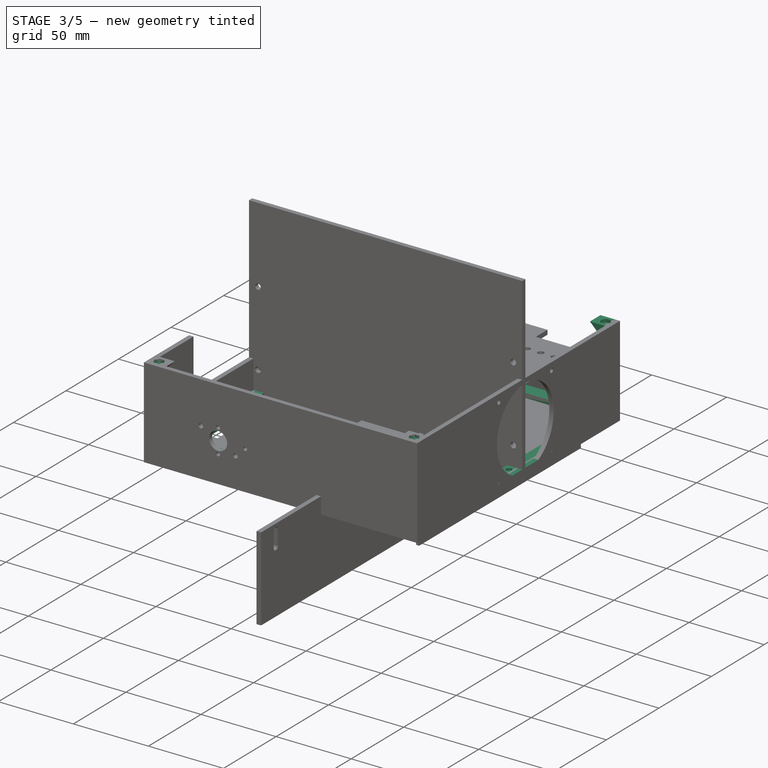
[diagram: stage 3 of 5 — iso view after this stage's code; geometry added in this stage tinted green]
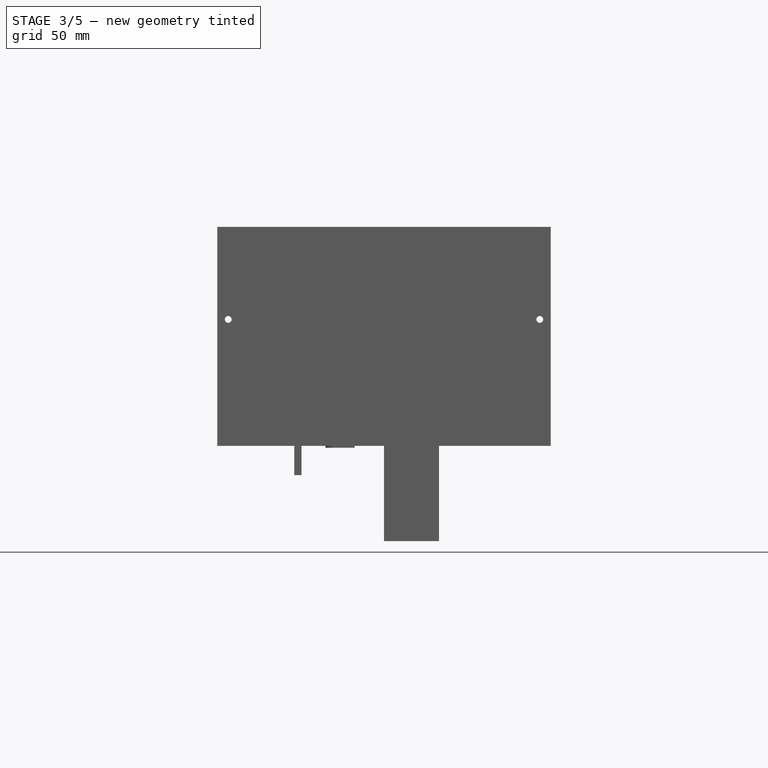
[diagram: stage 3 of 5 — front view after this stage's code; geometry added in this stage tinted green]
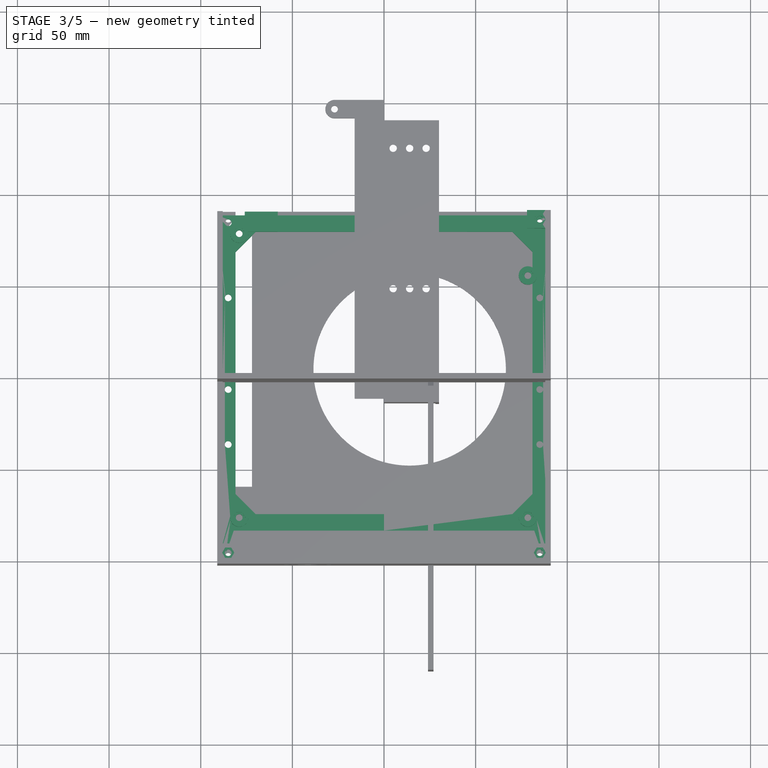
[diagram: stage 3 of 5 — top view after this stage's code; geometry added in this stage tinted green]
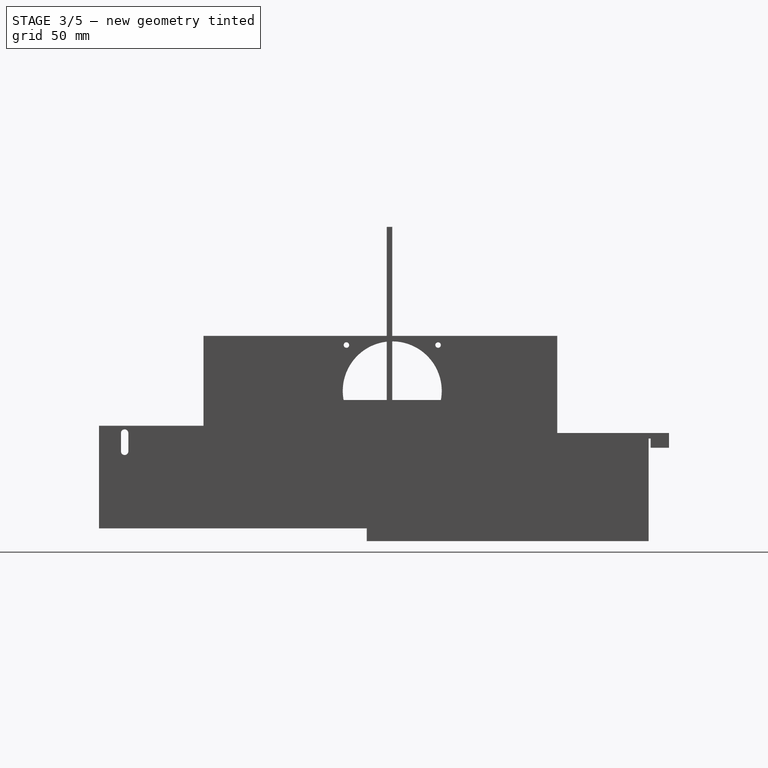
[diagram: stage 3 of 5 — right view after this stage's code; geometry added in this stage tinted green]
FEATURE [Sketcher::SketchObject] Sketch156  label="lubang-std-mobo007"
  FullyConstrained = true
  MapMode = 5
  expr: Constraints[6] = 6.1in - 0.9in
  sketch-geometry (9):
    g0: Circle CenterX=-79 CenterY=78 CenterZ=0 NormalX=0 NormalY=0 NormalZ=1 AngleXU=0 Radius=3.5
    g1: Circle CenterX=-79 CenterY=-76.94 CenterZ=0 NormalX=0 NormalY=0 NormalZ=1 AngleXU=0 Radius=3.5
    g2: Circle CenterX=78.48 CenterY=-76.94 CenterZ=0 NormalX=0 NormalY=0 NormalZ=1 AngleXU=0 Radius=3.5
    g3: Circle CenterX=78.48 CenterY=55.14 CenterZ=0 NormalX=0 NormalY=0 NormalZ=1 AngleXU=0 Radius=3.5
    g4: GeomPoint X=0 Y=90 Z=0
    g5: LineSegment StartX=-85 StartY=88.06 StartZ=0 EndX=85 EndY=88.06 EndZ=0
    g6: LineSegment StartX=85 StartY=88.06 StartZ=0 EndX=85 EndY=-81.94 EndZ=0
    g7: LineSegment StartX=85 StartY=-81.94 StartZ=0 EndX=-85 EndY=-81.94 EndZ=0
    g8: LineSegment StartX=-85 StartY=-81.94 StartZ=0 EndX=-85 EndY=88.06 EndZ=0
  constraints (26):
    c: Equal(g1,g2)
    c: Vertical(g0,g1)
    c: DistanceY(g1,g0) = 154.94
    c: Equal(g2,g3)
    c: Horizontal(g2,g1)
    c: Vertical(g2,g3)
    c: DistanceY(g2,g3) = 132.08
    c: PointOnObject(g4,g-2)
    c: DistanceY(g-1,g4) = 90
    c: DistanceX(g0,g-1) = 79
    c: DistanceY(g0,g-1) = -78
    c: DistanceX(g0,g3) = 157.48
    c: Equal(g0,g3)
    c: Diameter(g1) = 7
    c: Coincident(g5,g6)
    c: Coincident(g6,g7)
    c: Coincident(g7,g8)
    c: Coincident(g8,g5)
    c: Horizontal(g5)
    c: Horizontal(g7)
    c: Vertical(g6)
    c: Vertical(g8)
    c: Equal(g6,g5)
    c: DistanceX(g5,g5) = 170
    c: DistanceY(g7,g1) = 5
    c: DistanceX(g7,g1) = 6
FEATURE [PartDesign::Body] Body005  label="mobo-hw"
  Group = -> [Sketch156]
  Origin = -> Origin005
  Placement = pos=(0,2,130) rot=(0,0,1;0rad)
  Tip = -> Pad002
FEATURE [App::DocumentObjectGroup] Group  label="hardwares"
  Group = -> [Body003,mirror001,Body005]
FEATURE [Sketcher::SketchObject] Sketch158
  FullyConstrained = true
  MapMode = 5
  Support = -> [XY_Plane005]
  sketch-geometry (17):
    g0: LineSegment StartX=-91 StartY=-102 StartZ=0 EndX=-91 EndY=88 EndZ=0
    g1: LineSegment StartX=-91 StartY=-102 StartZ=0 EndX=-82 EndY=-102 EndZ=0
    g2: LineSegment StartX=-82 StartY=-102 StartZ=0 EndX=-82 EndY=-84 EndZ=0
    g3: LineSegment StartX=-82 StartY=-84 StartZ=0 EndX=0 EndY=-84 EndZ=0
    g4: LineSegment StartX=0 StartY=-84 StartZ=0 EndX=0 EndY=-75 EndZ=0
    g5: LineSegment StartX=0 StartY=-75 StartZ=0 EndX=-70 EndY=-75 EndZ=0
    g6: LineSegment StartX=-81 StartY=-64 StartZ=0 EndX=-81 EndY=68 EndZ=0
    g7: LineSegment StartX=-70 StartY=79 StartZ=0 EndX=0 EndY=79 EndZ=0
    g8: LineSegment StartX=0 StartY=79 StartZ=0 EndX=0 EndY=88 EndZ=0
    g9: LineSegment StartX=-91 StartY=88 StartZ=0 EndX=0 EndY=88 EndZ=0
    g10: LineSegment StartX=-81 StartY=68 StartZ=0 EndX=-70 EndY=79 EndZ=0
    g11: LineSegment StartX=-81 StartY=-64 StartZ=0 EndX=-70 EndY=-75 EndZ=0
    g12: Circle CenterX=-85 CenterY=84 CenterZ=0 NormalX=0 NormalY=0 NormalZ=1 AngleXU=0 Radius=1.85
    g13: Circle CenterX=-85 CenterY=-7 CenterZ=0 NormalX=0 NormalY=0 NormalZ=1 AngleXU=0 Radius=1.85
    g14: Circle CenterX=-85 CenterY=-98 CenterZ=0 NormalX=0 NormalY=0 NormalZ=1 AngleXU=0 Radius=1.85
    g15: Circle CenterX=-85 CenterY=43 CenterZ=0 NormalX=0 NormalY=0 NormalZ=1 AngleXU=0 Radius=1.85
    g16: Circle CenterX=-85 CenterY=-37 CenterZ=0 NormalX=0 NormalY=0 NormalZ=1 AngleXU=0 Radius=1.85
  constraints (51):
    c: Vertical(g0)
    c: Coincident(g0,g1)
    c: Horizontal(g1)
    c: Coincident(g1,g2)
    c: Vertical(g2)
    c: Coincident(g2,g3)
    c: PointOnObject(g3,g-2)
    c: Horizontal(g3)
    c: Coincident(g3,g4)
    c: PointOnObject(g4,g-2)
    c: Coincident(g4,g5)
    c: Horizontal(g5)
    c: Vertical(g6)
    c: PointOnObject(g7,g-2)
    c: Horizontal(g7)
    c: Coincident(g7,g8)
    c: Vertical(g8)
    c: Coincident(g9,g0)
    c: Coincident(g9,g8)
    c: Horizontal(g9)
    c: Coincident(g10,g6)
    c: Coincident(g10,g7)
    c: Angle(g10,g7) = 2.35619
    c: Coincident(g11,g6)
    c: Coincident(g11,g5)
    c: Angle(g11,g6) = 2.35619
    c: Equal(g1,g4)
    c: Equal(g4,g8)
    c: DistanceX(g1,g1) = 9
    c: DistanceY(g8) = 88
    c: DistanceX(g9,g9) = 91
    c: DistanceY(g0,g0) = 190
    c: DistanceY(g2,g2) = 18
    c: DistanceX(g7,g7) = 70
    c: Equal(g5,g7)
    c: DistanceX(g0,g6) = 10
    c: DistanceY(g14,g13) = 91
    c: DistanceY(g13,g12) = 91
    c: Diameter(g12) = 3.7
    c: Equal(g12,g13)
    c: Equal(g12,g14)
    c: DistanceX(g12,g0) = -6
    c: DistanceY(g12,g0) = 4
    c: Vertical(g13,g14)
    c: Vertical(g14,g12)
    c: Vertical(g16,g15)
    c: Vertical(g15,g13)
    c: Equal(g15,g16)
    c: Equal(g16,g13)
    c: DistanceY(g16,g13) = 30
    c: DistanceY(g13,g15) = 50
FEATURE [PartDesign::Pad] Pad009  label="bed"
  Direction = (1,1,1)
  Length = 6
  Length2 = 100
  Profile = -> Sketch158
  Type = 0
FEATURE [PartDesign::Mirrored] Mirrored
  BaseFeature = -> Pad009
  MirrorPlane = -> Sketch158 [V_Axis]
  Originals = -> [Pad009]
FEATURE [Sketcher::SketchObject] Sketch159  label="lubang-std-mobo009"
  FullyConstrained = true
  MapMode = 5
  Placement = pos=(0,0,6) rot=(0,0,1;0rad)
  expr: Constraints[6] = 6.1in - 0.9in
  sketch-geometry (9):
    g0: Circle CenterX=-79 CenterY=78 CenterZ=0 NormalX=0 NormalY=0 NormalZ=1 AngleXU=0 Radius=5
    g1: Circle CenterX=-79 CenterY=-76.94 CenterZ=0 NormalX=0 NormalY=0 NormalZ=1 AngleXU=0 Radius=5
    g2: Circle CenterX=78.48 CenterY=-76.94 CenterZ=0 NormalX=0 NormalY=0 NormalZ=1 AngleXU=0 Radius=5
    g3: Circle CenterX=78.48 CenterY=55.14 CenterZ=0 NormalX=0 NormalY=0 NormalZ=1 AngleXU=0 Radius=5
    g4: GeomPoint X=0 Y=90 Z=0
    g5: LineSegment StartX=-85 StartY=88.06 StartZ=0 EndX=85 EndY=88.06 EndZ=0
    g6: LineSegment StartX=85 StartY=88.06 StartZ=0 EndX=85 EndY=-81.94 EndZ=0
    g7: LineSegment StartX=85 StartY=-81.94 StartZ=0 EndX=-85 EndY=-81.94 EndZ=0
    g8: LineSegment StartX=-85 StartY=-81.94 StartZ=0 EndX=-85 EndY=88.06 EndZ=0
  constraints (26):
    c: Equal(g1,g2)
    c: Vertical(g0,g1)
    c: DistanceY(g1,g0) = 154.94
    c: Equal(g2,g3)
    c: Horizontal(g2,g1)
    c: Vertical(g2,g3)
    c: DistanceY(g2,g3) = 132.08
    c: PointOnObject(g4,g-2)
    c: DistanceY(g-1,g4) = 90
    c: DistanceX(g0,g-1) = 79
    c: DistanceY(g0,g-1) = -78
    c: DistanceX(g0,g3) = 157.48
    c: Equal(g0,g3)
    c: Diameter(g1) = 10
    c: Coincident(g5,g6)
    c: Coincident(g6,g7)
    c: Coincident(g7,g8)
    c: Coincident(g8,g5)
    c: Horizontal(g5)
    c: Horizontal(g7)
    c: Vertical(g6)
    c: Vertical(g8)
    c: Equal(g6,g5)
    c: DistanceX(g5,g5) = 170
    c: DistanceY(g7,g1) = 5
    c: DistanceX(g7,g1) = 6
FEATURE [Sketcher::SketchObject] Sketch160  label="lubang-std-mobo010"
  FullyConstrained = true
  MapMode = 5
  Placement = pos=(0,0,6) rot=(0,0,1;0rad)
  expr: Constraints[6] = 6.1in - 0.9in
  sketch-geometry (9):
    g0: Circle CenterX=-79 CenterY=78 CenterZ=0 NormalX=0 NormalY=0 NormalZ=1 AngleXU=0 Radius=1.85
    g1: Circle CenterX=-79 CenterY=-76.94 CenterZ=0 NormalX=0 NormalY=0 NormalZ=1 AngleXU=0 Radius=1.85
    g2: Circle CenterX=78.48 CenterY=-76.94 CenterZ=0 NormalX=0 NormalY=0 NormalZ=1 AngleXU=0 Radius=1.85
    g3: Circle CenterX=78.48 CenterY=55.14 CenterZ=0 NormalX=0 NormalY=0 NormalZ=1 AngleXU=0 Radius=1.85
    g4: GeomPoint X=0 Y=90 Z=0
    g5: LineSegment StartX=-85 StartY=88.06 StartZ=0 EndX=85 EndY=88.06 EndZ=0
    g6: LineSegment StartX=85 StartY=88.06 StartZ=0 EndX=85 EndY=-81.94 EndZ=0
    g7: LineSegment StartX=85 StartY=-81.94 StartZ=0 EndX=-85 EndY=-81.94 EndZ=0
    g8: LineSegment StartX=-85 StartY=-81.94 StartZ=0 EndX=-85 EndY=88.06 EndZ=0
  constraints (26):
    c: Equal(g1,g2)
    c: Vertical(g0,g1)
    c: DistanceY(g1,g0) = 154.94
    c: Equal(g2,g3)
    c: Horizontal(g2,g1)
    c: Vertical(g2,g3)
    c: DistanceY(g2,g3) = 132.08
    c: PointOnObject(g4,g-2)
    c: DistanceY(g-1,g4) = 90
    c: DistanceX(g0,g-1) = 79
    c: DistanceY(g0,g-1) = -78
    c: DistanceX(g0,g3) = 157.48
    c: Equal(g0,g3)
    c: Diameter(g1) = 3.7
    c: Coincident(g5,g6)
    c: Coincident(g6,g7)
    c: Coincident(g7,g8)
    c: Coincident(g8,g5)
    c: Horizontal(g5)
    c: Horizontal(g7)
    c: Vertical(g6)
    c: Vertical(g8)
    c: Equal(g6,g5)
    c: DistanceX(g5,g5) = 170
    c: DistanceY(g7,g1) = 5
    c: DistanceX(g7,g1) = 6
FEATURE [PartDesign::Pad] Pad010  label="standoff"
  BaseFeature = -> Mirrored
  Direction = (1,1,1)
  Length = 5
  Length2 = 6
  Profile = -> Sketch159
  Type = 4
FEATURE [PartDesign::Pocket] Pocket006  label="standoffholes"
  BaseFeature = -> Pad010
  Length = 5
  Length2 = 100
  Midplane = true
  Profile = -> Sketch160
  Type = 1
FEATURE [Sketcher::SketchObject] Sketch161  label="lubang-std-mobo011"
  FullyConstrained = true
  MapMode = 5
  Placement = pos=(0,0,11) rot=(0,0,1;0rad)
  expr: Constraints[6] = 6.1in - 0.9in
  sketch-geometry (37):
    g0: Circle CenterX=-79 CenterY=78 CenterZ=0 NormalX=0 NormalY=0 NormalZ=1 AngleXU=0 Radius=20
    g1: Circle CenterX=-79 CenterY=-76.94 CenterZ=0 NormalX=0 NormalY=0 NormalZ=1 AngleXU=0 Radius=20
    g2: Circle CenterX=78.48 CenterY=-76.94 CenterZ=0 NormalX=0 NormalY=0 NormalZ=1 AngleXU=0 Radius=20
    g3: Circle CenterX=78.48 CenterY=55.14 CenterZ=0 NormalX=0 NormalY=0 NormalZ=1 AngleXU=0 Radius=20
    g4: GeomPoint X=0 Y=90 Z=0
    g5: LineSegment StartX=-85 StartY=88.06 StartZ=0 EndX=85 EndY=88.06 EndZ=0
    g6: LineSegment StartX=85 StartY=88.06 StartZ=0 EndX=85 EndY=-81.94 EndZ=0
    g7: LineSegment StartX=85 StartY=-81.94 StartZ=0 EndX=-85 EndY=-81.94 EndZ=0
    g8: LineSegment StartX=-85 StartY=-81.94 StartZ=0 EndX=-85 EndY=88.06 EndZ=0
    g9: LineSegment StartX=-75.7091 StartY=78 StartZ=0 EndX=-77.3546 EndY=80.85 EndZ=0
    g10: LineSegment StartX=-77.3546 StartY=80.85 StartZ=0 EndX=-80.6454 EndY=80.85 EndZ=0
    g11: LineSegment StartX=-80.6454 StartY=80.85 StartZ=0 EndX=-82.2909 EndY=78 EndZ=0
    g12: LineSegment StartX=-82.2909 StartY=78 StartZ=0 EndX=-80.6454 EndY=75.15 EndZ=0
    g13: LineSegment StartX=-80.6454 StartY=75.15 StartZ=0 EndX=-77.3546 EndY=75.15 EndZ=0
    g14: LineSegment StartX=-77.3546 StartY=75.15 StartZ=0 EndX=-75.7091 EndY=78 EndZ=0
    g15: Circle CenterX=-79 CenterY=78 CenterZ=0 NormalX=0 NormalY=0 NormalZ=1 AngleXU=0 Radius=3.2909
    g16: LineSegment StartX=81.7709 StartY=55.14 StartZ=0 EndX=80.1254 EndY=57.99 EndZ=0
    g17: LineSegment StartX=80.1254 StartY=57.99 StartZ=0 EndX=76.8346 EndY=57.99 EndZ=0
    g18: LineSegment StartX=76.8346 StartY=57.99 StartZ=0 EndX=75.1891 EndY=55.14 EndZ=0
    g19: LineSegment StartX=75.1891 StartY=55.14 StartZ=0 EndX=76.8346 EndY=52.29 EndZ=0
    g20: LineSegment StartX=76.8346 StartY=52.29 StartZ=0 EndX=80.1254 EndY=52.29 EndZ=0
    g21: LineSegment StartX=80.1254 StartY=52.29 StartZ=0 EndX=81.7709 EndY=55.14 EndZ=0
    g22: Circle CenterX=78.48 CenterY=55.14 CenterZ=0 NormalX=0 NormalY=0 NormalZ=1 AngleXU=0 Radius=3.2909
    g23: LineSegment StartX=81.7709 StartY=-76.94 StartZ=0 EndX=80.1254 EndY=-74.09 EndZ=0
    g24: LineSegment StartX=80.1254 StartY=-74.09 StartZ=0 EndX=76.8346 EndY=-74.09 EndZ=0
    g25: LineSegment StartX=76.8346 StartY=-74.09 StartZ=0 EndX=75.1891 EndY=-76.94 EndZ=0
    g26: LineSegment StartX=75.1891 StartY=-76.94 StartZ=0 EndX=76.8346 EndY=-79.79 EndZ=0
    g27: LineSegment StartX=76.8346 StartY=-79.79 StartZ=0 EndX=80.1254 EndY=-79.79 EndZ=0
    g28: LineSegment StartX=80.1254 StartY=-79.79 StartZ=0 EndX=81.7709 EndY=-76.94 EndZ=0
    g29: Circle CenterX=78.48 CenterY=-76.94 CenterZ=0 NormalX=0 NormalY=0 NormalZ=1 AngleXU=0 Radius=3.2909
    g30: LineSegment StartX=-75.7091 StartY=-76.94 StartZ=0 EndX=-77.3546 EndY=-74.09 EndZ=0
    g31: LineSegment StartX=-77.3546 StartY=-74.09 StartZ=0 EndX=-80.6454 EndY=-74.09 EndZ=0
    g32: LineSegment StartX=-80.6454 StartY=-74.09 StartZ=0 EndX=-82.2909 EndY=-76.94 EndZ=0
    g33: LineSegment StartX=-82.2909 StartY=-76.94 StartZ=0 EndX=-80.6454 EndY=-79.79 EndZ=0
    g34: LineSegment StartX=-80.6454 StartY=-79.79 StartZ=0 EndX=-77.3546 EndY=-79.79 EndZ=0
    g35: LineSegment StartX=-77.3546 StartY=-79.79 StartZ=0 EndX=-75.7091 EndY=-76.94 EndZ=0
    g36: Circle CenterX=-79 CenterY=-76.94 CenterZ=0 NormalX=0 NormalY=0 NormalZ=1 AngleXU=0 Radius=3.2909
  constraints (90):
    c: Equal(g1,g2)
    c: Vertical(g0,g1)
    c: DistanceY(g1,g0) = 154.94
    c: Equal(g2,g3)
    c: Horizontal(g2,g1)
    c: Vertical(g2,g3)
    c: DistanceY(g2,g3) = 132.08
    c: PointOnObject(g4,g-2)
    c: DistanceY(g-1,g4) = 90
    c: DistanceX(g0,g-1) = 79
    c: DistanceY(g0,g-1) = -78
    c: DistanceX(g0,g3) = 157.48
    c: Equal(g0,g3)
    c: Diameter(g1) = 40
    c: Coincident(g5,g6)
    c: Coincident(g6,g7)
    c: Coincident(g7,g8)
    c: Coincident(g8,g5)
    c: Horizontal(g5)
    c: Horizontal(g7)
    c: Vertical(g6)
    c: Vertical(g8)
    c: Equal(g6,g5)
    c: DistanceX(g5,g5) = 170
    c: DistanceY(g7,g1) = 5
    c: DistanceX(g7,g1) = 6
    c: Coincident(g9,g10)
    c: Coincident(g10,g11)
    c: Coincident(g11,g12)
    c: Coincident(g12,g13)
    c: Coincident(g13,g14)
    c: Coincident(g14,g9)
    c: Equal(g9, g10-g14) x5
    c: PointOnObject(g9,g15)
    c: PointOnObject(g10,g15)
    c: PointOnObject(g11,g15)
    c: PointOnObject(g12,g15)
    c: PointOnObject(g13,g15)
    c: PointOnObject(g14,g15)
    c: Coincident(g15,g0)
    c: Coincident(g16,g17)
    c: Coincident(g17,g18)
    c: Coincident(g18,g19)
    c: Coincident(g19,g20)
    c: Coincident(g20,g21)
    c: Coincident(g21,g16)
    c: Equal(g16, g17-g21) x5
    c: PointOnObject(g16,g22)
    c: PointOnObject(g17,g22)
    c: PointOnObject(g18,g22)
    c: PointOnObject(g19,g22)
    c: PointOnObject(g20,g22)
    c: PointOnObject(g21,g22)
    c: Coincident(g22,g3)
    c: Coincident(g23,g24)
    c: Coincident(g24,g25)
    c: Coincident(g25,g26)
    c: Coincident(g26,g27)
    c: Coincident(g27,g28)
    c: Coincident(g28,g23)
    c: Equal(g23, g24-g28) x5
    c: PointOnObject(g23,g29)
    c: PointOnObject(g24,g29)
    c: PointOnObject(g25,g29)
    c: PointOnObject(g26,g29)
    c: PointOnObject(g27,g29)
    c: PointOnObject(g28,g29)
    c: Coincident(g29,g2)
    c: Coincident(g30,g31)
    c: Coincident(g31,g32)
    c: Coincident(g32,g33)
    c: Coincident(g33,g34)
    c: Coincident(g34,g35)
    c: Coincident(g35,g30)
    c: Equal(g30, g31-g35) x5
    c: PointOnObject(g30,g36)
    c: PointOnObject(g31,g36)
    c: PointOnObject(g32,g36)
    c: PointOnObject(g33,g36)
    c: PointOnObject(g34,g36)
    c: PointOnObject(g35,g36)
    c: Coincident(g36,g1)
    c: Equal(g36,g29)
    c: Equal(g29,g22)
    c: Equal(g22,g15)
    c: Horizontal(g10)
    c: Horizontal(g17)
    c: Horizontal(g24)
    c: Horizontal(g31)
    c: DistanceY(g13,g9) = 5.7
FEATURE [PartDesign::Pocket] Pocket007  label="standoffhex"
  BaseFeature = -> Pocket006
  Length = 3
  Length2 = 100
  Profile = -> Sketch161
  Type = 0
FEATURE [Sketcher::SketchObject] Sketch162
  AttachmentOffset = pos=(0,0,-88) rot=(0,1,0;3.14159rad)
  FullyConstrained = true
  MapMode = 5
  Placement = pos=(0,88,1.95e-14) rot=(0,0.707107,0.707107;3.14159rad)
  Support = -> [XZ_Plane006]
  sketch-geometry (4):
    g0: LineSegment StartX=76 StartY=8 StartZ=0 EndX=58 EndY=8 EndZ=0
    g1: LineSegment StartX=58 StartY=8 StartZ=0 EndX=58 EndY=0 EndZ=0
    g2: LineSegment StartX=58 StartY=0 StartZ=0 EndX=76 EndY=0 EndZ=0
    g3: LineSegment StartX=76 StartY=0 StartZ=0 EndX=76 EndY=8 EndZ=0
  constraints (12):
    c: Coincident(g0,g1)
    c: Coincident(g1,g2)
    c: Coincident(g2,g3)
    c: Coincident(g3,g0)
    c: Horizontal(g0)
    c: Horizontal(g2)
    c: Vertical(g1)
    c: Vertical(g3)
    c: DistanceX(g2) = 76
    c: DistanceX(g0,g0) = 18
    c: PointOnObject(g2,g-1)
    c: DistanceY(g1,g1) = 8
FEATURE [Sketcher::SketchObject] Sketch163  label="gpumounthole"
  AttachmentOffset = pos=(0,0,-88) rot=(0,1,0;3.14159rad)
  FullyConstrained = true
  MapMode = 5
  Placement = pos=(0,88,1.95e-14) rot=(0,0.707107,0.707107;3.14159rad)
  Support = -> [XZ_Plane006]
  sketch-geometry (2):
    g0: Circle CenterX=71 CenterY=4 CenterZ=0 NormalX=0 NormalY=0 NormalZ=1 AngleXU=0 Radius=1.75
    g1: Circle CenterX=62 CenterY=4 CenterZ=0 NormalX=0 NormalY=0 NormalZ=1 AngleXU=0 Radius=1.75
  constraints (6):
    c: Horizontal(g1,g0)
    c: DistanceX(g1,g0) = 9
    c: Equal(g1,g0)
    c: Diameter(g1) = 3.5
    c: DistanceX(g1) = 62
    c: DistanceY(g1) = 4
FEATURE [PartDesign::Pad] Pad011  label="gpumount"
  BaseFeature = -> Pocket007
  Direction = (1,1,1)
  Length = 2
  Length2 = 9
  Profile = -> Sketch162
  Reversed = true
  Type = 4
FEATURE [Sketcher::SketchObject] Sketch174
  AttachmentOffset = pos=(0,0,60.1) rot=(0,0,1;0rad)
  FullyConstrained = true
  MapMode = 5
  Placement = pos=(0,0,60.1) rot=(0,0,1;0rad)
  Support = -> [XY_Plane006]
  sketch-geometry (7):
    g0: LineSegment StartX=88.2909 StartY=-97 StartZ=0 EndX=86.6454 EndY=-94.15 EndZ=0
    g1: LineSegment StartX=86.6454 StartY=-94.15 StartZ=0 EndX=83.3546 EndY=-94.15 EndZ=0
    g2: LineSegment StartX=83.3546 StartY=-94.15 StartZ=0 EndX=81.7091 EndY=-97 EndZ=0
    g3: LineSegment StartX=81.7091 StartY=-97 StartZ=0 EndX=83.3546 EndY=-99.85 EndZ=0
    g4: LineSegment StartX=83.3546 StartY=-99.85 StartZ=0 EndX=86.6454 EndY=-99.85 EndZ=0
    g5: LineSegment StartX=86.6454 StartY=-99.85 StartZ=0 EndX=88.2909 EndY=-97 EndZ=0
    g6: Circle CenterX=85 CenterY=-97 CenterZ=0 NormalX=0 NormalY=0 NormalZ=1 AngleXU=0 Radius=3.2909
  constraints (17):
    c: Coincident(g0,g1)
    c: Coincident(g1,g2)
    c: Coincident(g2,g3)
    c: Coincident(g3,g4)
    c: Coincident(g4,g5)
    c: Coincident(g5,g0)
    c: Equal(g0, g1-g5) x5
    c: PointOnObject(g0,g6)
    c: PointOnObject(g1,g6)
    c: PointOnObject(g2,g6)
    c: PointOnObject(g3,g6)
    c: PointOnObject(g4,g6)
    c: PointOnObject(g5,g6)
    c: Horizontal(g4)
    c: DistanceY(g4,g0) = 5.7
    c: DistanceY(g2) = -97
    c: DistanceX(g6) = 85
FEATURE [PartDesign::Pocket] Pocket012  label="atashex"
  BaseFeature = -> Pad016
  Length = 2
  Length2 = 100
  Profile = -> Sketch174
  Type = 0
FEATURE [PartDesign::Mirrored] Mirrored003
  BaseFeature = -> Pocket012
  MirrorPlane = -> Sketch174 [V_Axis]
  Originals = -> [Pocket012]
FEATURE [Sketcher::SketchObject] Sketch175
  AttachmentOffset = pos=(0,0,61) rot=(0,0,1;0rad)
  FullyConstrained = true
  MapMode = 5
  Placement = pos=(0,0,61) rot=(0,0,1;0rad)
  Support = -> [XY_Plane006]
  sketch-geometry (2):
    g0: Circle CenterX=85 CenterY=-97 CenterZ=0 NormalX=0 NormalY=0 NormalZ=1 AngleXU=0 Radius=1.85
    g1: Circle CenterX=-85 CenterY=-97 CenterZ=0 NormalX=0 NormalY=0 NormalZ=1 AngleXU=0 Radius=1.85
  constraints (5):
    c: Symmetric(g0,g1,g-2)
    c: DistanceX(g0) = 85
    c: DistanceY(g0) = -97
    c: Diameter(g0) = 3.7
    c: Equal(g0,g1)
FEATURE [PartDesign::Pocket] Pocket013
  BaseFeature = -> Mirrored003
  Length = 20
  Length2 = 100
  Profile = -> Sketch175
  Type = 0
FEATURE [Sketcher::SketchObject] Sketch176
  FullyConstrained = true
  MapMode = 5
  Placement = pos=(0,90,0) rot=(0,0.707107,0.707107;3.14159rad)
  Support = -> [Pocket013]
  sketch-geometry (3):
    g0: LineSegment StartX=-88 StartY=60 StartZ=0 EndX=-88 EndY=50 EndZ=0
    g1: LineSegment StartX=-88 StartY=50 StartZ=0 EndX=-78 EndY=60 EndZ=0
    g2: LineSegment StartX=-78 StartY=60 StartZ=0 EndX=-88 EndY=60 EndZ=0
  constraints (9):
    c: Vertical(g0)
    c: Coincident(g0,g1)
    c: Coincident(g1,g2)
    c: Coincident(g2,g0)
    c: Horizontal(g2)
    c: DistanceX(g0) = -88
    c: DistanceY(g0) = 50
    c: Equal(g0,g2)
    c: DistanceX(g2,g2) = 10
FEATURE [PartDesign::Pad] Pad017  label="sekrupatas-dpn"
  BaseFeature = -> Pocket013
  Direction = (1,1,1)
  Length = 10
  Length2 = 100
  Profile = -> Sketch176
  Reversed = true
  Type = 0
FEATURE [Sketcher::SketchObject] Sketch177
  FullyConstrained = true
  MapMode = 5
  Placement = pos=(0,1.32e-14,60) rot=(0,0,1;0rad)
  Support = -> [Pad017]
  sketch-geometry (7):
    g0: LineSegment StartX=88.2909 StartY=84.97 StartZ=0 EndX=86.6454 EndY=87.82 EndZ=0
    g1: LineSegment StartX=86.6454 StartY=87.82 StartZ=0 EndX=83.3546 EndY=87.82 EndZ=0
    g2: LineSegment StartX=83.3546 StartY=87.82 StartZ=0 EndX=81.7091 EndY=84.97 EndZ=0
    g3: LineSegment StartX=81.7091 StartY=84.97 StartZ=0 EndX=83.3546 EndY=82.12 EndZ=0
    g4: LineSegment StartX=83.3546 StartY=82.12 StartZ=0 EndX=86.6454 EndY=82.12 EndZ=0
    g5: LineSegment StartX=86.6454 StartY=82.12 StartZ=0 EndX=88.2909 EndY=84.97 EndZ=0
    g6: Circle CenterX=85 CenterY=84.97 CenterZ=0 NormalX=0 NormalY=0 NormalZ=1 AngleXU=0 Radius=3.2909
  constraints (17):
    c: Coincident(g0,g1)
    c: Coincident(g1,g2)
    c: Coincident(g2,g3)
    c: Coincident(g3,g4)
    c: Coincident(g4,g5)
    c: Coincident(g5,g0)
    c: Equal(g0, g1-g5) x5
    c: PointOnObject(g0,g6)
    c: PointOnObject(g1,g6)
    c: PointOnObject(g2,g6)
    c: PointOnObject(g3,g6)
    c: PointOnObject(g4,g6)
    c: PointOnObject(g5,g6)
    c: DistanceY(g4,g0) = 5.7
    c: Horizontal(g4)
    c: DistanceX(g6) = 85
    c: DistanceY(g4) = 82.12
FEATURE [PartDesign::Pocket] Pocket014  label="atashex-dpn"
  BaseFeature = -> Pad017
  Length = 2
  Length2 = 100
  Profile = -> Sketch177
  Type = 0
FEATURE [Sketcher::SketchObject] Sketch178
  AttachmentOffset = pos=(0,0,61) rot=(0,0,1;0rad)
  FullyConstrained = true
  MapMode = 5
  Placement = pos=(0,0,61) rot=(0,0,1;0rad)
  Support = -> [XY_Plane006]
  sketch-geometry (1):
    g0: Circle CenterX=85 CenterY=85 CenterZ=0 NormalX=0 NormalY=0 NormalZ=1 AngleXU=0 Radius=1.85
  constraints (3):
    c: DistanceX(g0) = 85
    c: DistanceY(g0) = 85
    c: Diameter(g0) = 3.7
FEATURE [PartDesign::Pocket] Pocket015
  BaseFeature = -> Pocket014
  Length = 20
  Length2 = 100
  Profile = -> Sketch178
  Type = 0
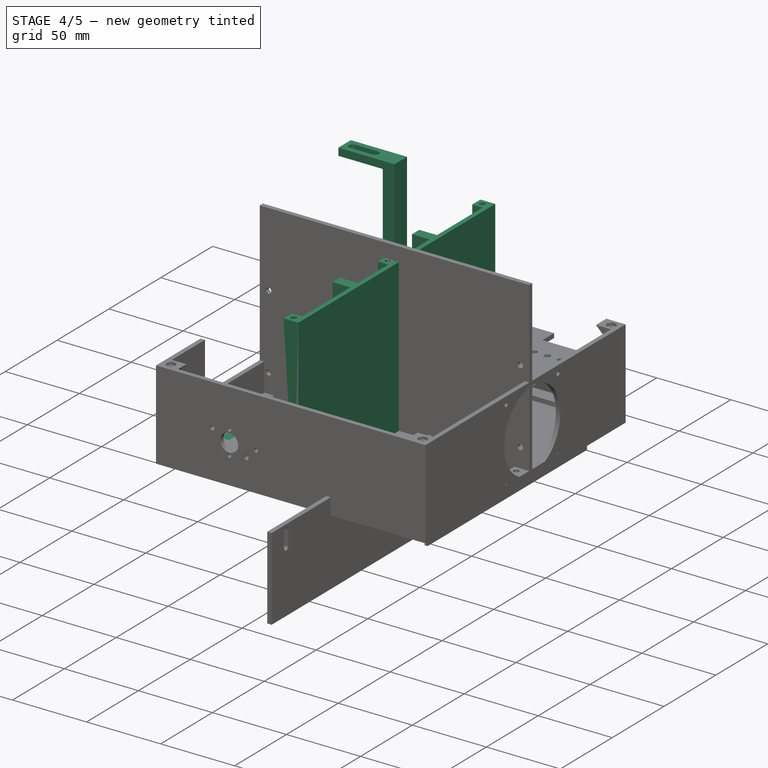
[diagram: stage 4 of 5 — iso view after this stage's code; geometry added in this stage tinted green]
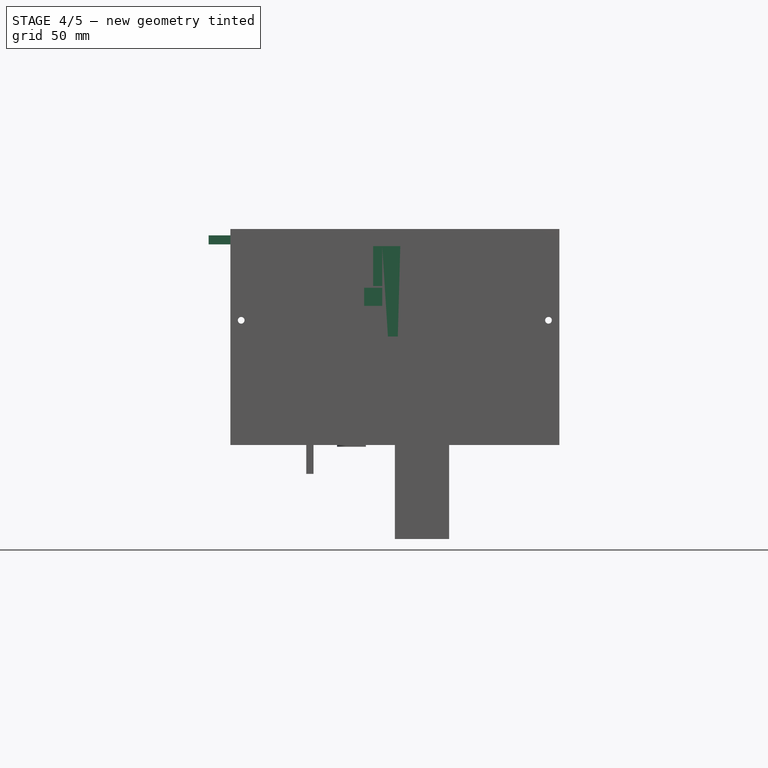
[diagram: stage 4 of 5 — front view after this stage's code; geometry added in this stage tinted green]
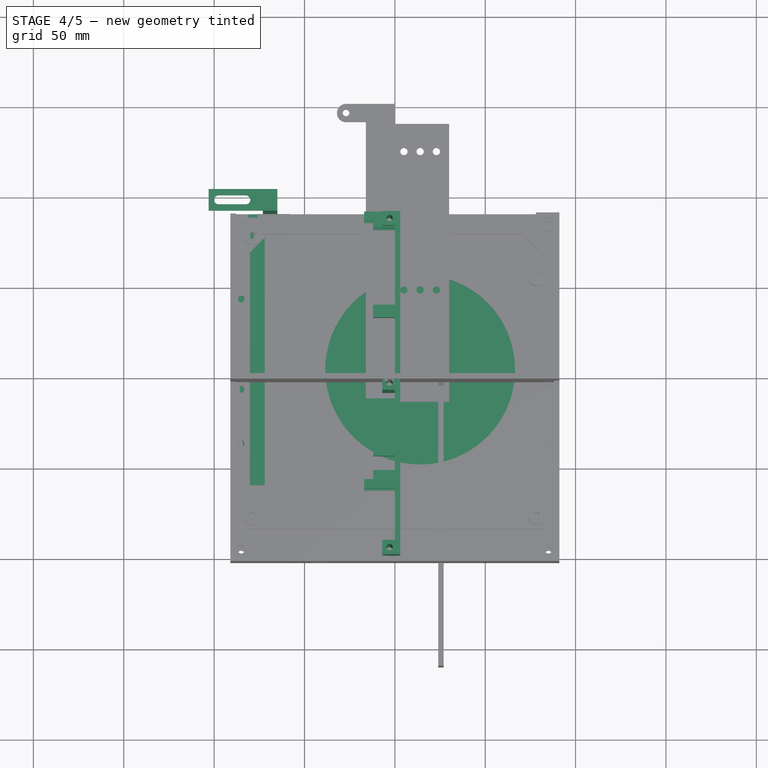
[diagram: stage 4 of 5 — top view after this stage's code; geometry added in this stage tinted green]
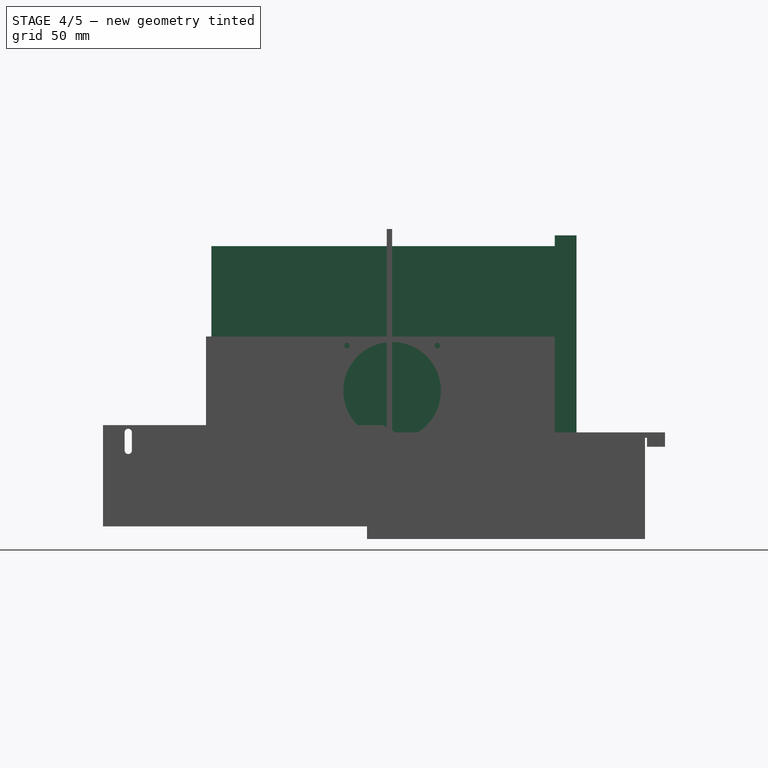
[diagram: stage 4 of 5 — right view after this stage's code; geometry added in this stage tinted green]
FEATURE [Sketcher::SketchObject] Sketch142  label="lubang-std-mobo005"
  FullyConstrained = true
  MapMode = 5
  expr: Constraints[15] = 6.1in - 0.9in
  sketch-geometry (15):
    g0: Circle CenterX=-124.72 CenterY=78 CenterZ=0 NormalX=0 NormalY=0 NormalZ=1 AngleXU=0 Radius=1.75
    g1: Circle CenterX=-79 CenterY=78 CenterZ=0 NormalX=0 NormalY=0 NormalZ=1 AngleXU=0 Radius=1.75
    g2: Circle CenterX=-145.04 CenterY=-76.94 CenterZ=0 NormalX=0 NormalY=0 NormalZ=1 AngleXU=0 Radius=1.75
    g3: Circle CenterX=-79 CenterY=-76.94 CenterZ=0 NormalX=0 NormalY=0 NormalZ=1 AngleXU=0 Radius=1.75
    g4: Circle CenterX=78.48 CenterY=-76.94 CenterZ=0 NormalX=0 NormalY=0 NormalZ=1 AngleXU=0 Radius=1.75
    g5: Circle CenterX=78.48 CenterY=55.14 CenterZ=0 NormalX=0 NormalY=0 NormalZ=1 AngleXU=0 Radius=1.75
    g6: LineSegment StartX=-91 StartY=90 StartZ=0 EndX=91 EndY=90 EndZ=0
    g7: LineSegment StartX=91 StartY=90 StartZ=0 EndX=91 EndY=-90 EndZ=0
    g8: LineSegment StartX=91 StartY=-90 StartZ=0 EndX=-91 EndY=-90 EndZ=0
    g9: LineSegment StartX=-91 StartY=-90 StartZ=0 EndX=-91 EndY=90 EndZ=0
    g10: GeomPoint X=0 Y=90 Z=0
    g11: Circle CenterX=-79 CenterY=78 CenterZ=0 NormalX=0 NormalY=0 NormalZ=1 AngleXU=0 Radius=3.5
    g12: Circle CenterX=78.48 CenterY=55.14 CenterZ=0 NormalX=0 NormalY=0 NormalZ=1 AngleXU=0 Radius=3.5
    g13: Circle CenterX=78.48 CenterY=-76.94 CenterZ=0 NormalX=0 NormalY=0 NormalZ=1 AngleXU=0 Radius=3.5
    g14: Circle CenterX=-79 CenterY=-76.94 CenterZ=0 NormalX=0 NormalY=0 NormalZ=1 AngleXU=0 Radius=3.5
  constraints (39):
    c: Equal(g0,g1)
    c: Equal(g1,g2)
    c: Equal(g2,g3)
    c: Equal(g3,g4)
    c: Diameter(g0) = 3.5
    c: DistanceX(g0,g1) = 45.72
    c: Horizontal(g0,g1)
    c: Vertical(g1,g3)
    c: DistanceY(g3,g1) = 154.94
    c: Horizontal(g2,g3)
    c: DistanceX(g2,g3) = 66.04
    c: Equal(g4,g5)
    c: Horizontal(g4,g3)
    c: DistanceX(g0,g4) = 203.2
    c: Vertical(g4,g5)
    c: DistanceY(g4,g5) = 132.08
    c: Coincident(g6,g7)
    c: Coincident(g7,g8)
    c: Coincident(g8,g9)
    c: Coincident(g9,g6)
    c: Horizontal(g6)
    c: Horizontal(g8)
    c: Vertical(g9)
    c: DistanceX(g6,g6) = 182
    c: DistanceY(g7,g7) = 180
    c: DistanceX(g6,g1) = 12
    c: DistanceY(g1,g6) = 12
    c: Vertical(g7)
    c: Symmetric(g6,g6,g10)
    c: PointOnObject(g10,g-2)
    c: DistanceY(g-1,g10) = 90
    c: Coincident(g11,g1)
    c: Coincident(g12,g5)
    c: Coincident(g13,g4)
    c: Coincident(g14,g3)
    c: Diameter(g11) = 7
    c: Equal(g11,g12)
    c: Equal(g11,g13)
    c: Equal(g11,g14)
FEATURE [PartDesign::Pad] Pad001
  AllowMultiFace = false
  Direction = (1,1,1)
  Length = 1
  Length2 = 100
  Profile = -> Sketch140
  Type = 0
FEATURE [Sketcher::SketchObject] Sketch143  label="lubang-std-mobo006"
  FullyConstrained = false
  MapMode = 5
  expr: Constraints[15] = 6.1in - 0.9in
  sketch-geometry (11):
    g0: Circle CenterX=-124.72 CenterY=78 CenterZ=0 NormalX=0 NormalY=0 NormalZ=1 AngleXU=0 Radius=3.5
    g1: Circle CenterX=-79 CenterY=78 CenterZ=0 NormalX=0 NormalY=0 NormalZ=1 AngleXU=0 Radius=3.5
    g2: Circle CenterX=-145.04 CenterY=-76.94 CenterZ=0 NormalX=0 NormalY=0 NormalZ=1 AngleXU=0 Radius=3.5
    g3: Circle CenterX=-79 CenterY=-76.94 CenterZ=0 NormalX=0 NormalY=0 NormalZ=1 AngleXU=0 Radius=3.5
    g4: Circle CenterX=78.48 CenterY=-76.94 CenterZ=0 NormalX=0 NormalY=0 NormalZ=1 AngleXU=0 Radius=3.5
    g5: Circle CenterX=78.48 CenterY=55.14 CenterZ=0 NormalX=0 NormalY=0 NormalZ=1 AngleXU=0 Radius=3.5
    g6: LineSegment StartX=-91 StartY=90 StartZ=0 EndX=91 EndY=90 EndZ=0
    g7: LineSegment StartX=91 StartY=90 StartZ=0 EndX=91 EndY=-90 EndZ=0
    g8: LineSegment StartX=91 StartY=-90 StartZ=0 EndX=-91 EndY=-90 EndZ=0
    g9: LineSegment StartX=-91 StartY=-90 StartZ=0 EndX=-91 EndY=90 EndZ=0
    g10: GeomPoint X=0 Y=90 Z=0
  constraints (31):
    c: Equal(g0,g1)
    c: Equal(g1,g2)
    c: Equal(g2,g3)
    c: Equal(g3,g4)
    c: Diameter(g0) = 7
    c: DistanceX(g0,g1) = 45.72
    c: Horizontal(g0,g1)
    c: Vertical(g1,g3)
    c: DistanceY(g3,g1) = 154.94
    c: Horizontal(g2,g3)
    c: DistanceX(g2,g3) = 66.04
    c: Equal(g4,g5)
    c: Horizontal(g4,g3)
    c: DistanceX(g0,g4) = 203.2
    c: Vertical(g4,g5)
    c: DistanceY(g4,g5) = 132.08
    c: Coincident(g6,g7)
    c: Coincident(g7,g8)
    c: Coincident(g8,g9)
    c: Coincident(g9,g6)
    c: Horizontal(g6)
    c: Horizontal(g8)
    c: Vertical(g9)
    c: DistanceX(g6,g6) = 182
    c: DistanceY(g7,g7) = 180
    c: DistanceX(g6,g1) = 12
    c: DistanceY(g1,g6) = 12
    c: Vertical(g7)
    c: Symmetric(g6,g6,g10)
    c: PointOnObject(g10,g-2)
    c: DistanceY(g-1,g10) = 90
FEATURE [PartDesign::Pad] Pad002
  AllowMultiFace = false
  BaseFeature = -> Pad001
  Direction = (1,1,1)
  Length = 10
  Length2 = 100
  Profile = -> Sketch142
  Type = 0
FEATURE [PartDesign::Body] Body001  label="mobo"
  Group = -> [Sketch140,Sketch142,Pad001,Sketch143,Pad002]
  Origin = -> Origin001
  Placement = pos=(0,0,119) rot=(0,0,1;0rad)
  Tip = -> Pad002
FEATURE [Sketcher::SketchObject] Sketch144
  FullyConstrained = true
  MapMode = 5
  Placement = pos=(0,0,0) rot=(0.57735,0.57735,0.57735;2.0944rad)
  Support = -> [YZ_Plane002]
  sketch-geometry (4):
    g0: LineSegment StartX=-100 StartY=0 StartZ=0 EndX=90 EndY=0 EndZ=0
    g1: LineSegment StartX=90 StartY=0 StartZ=0 EndX=90 EndY=110 EndZ=0
    g2: LineSegment StartX=90 StartY=110 StartZ=0 EndX=-100 EndY=110 EndZ=0
    g3: LineSegment StartX=-100 StartY=110 StartZ=0 EndX=-100 EndY=0 EndZ=0
  constraints (12):
    c: Coincident(g0,g1)
    c: Coincident(g1,g2)
    c: Coincident(g2,g3)
    c: Coincident(g3,g0)
    c: Horizontal(g0)
    c: Horizontal(g2)
    c: Vertical(g1)
    c: Vertical(g3)
    c: PointOnObject(g0,g-1)
    c: DistanceX(g0) = 90
    c: DistanceX(g0,g-1) = 100
    c: DistanceY(g1,g1) = 110
FEATURE [PartDesign::Pad] Pad003  label="samping"
  AllowMultiFace = false
  Direction = (1,1,1)
  Length = 3
  Length2 = 100
  Placement = pos=(0,0,0) rot=(0.57735,0.57735,0.57735;2.0944rad)
  Profile = -> Sketch144
  Type = 0
FEATURE [Sketcher::SketchObject] Sketch145
  FullyConstrained = false
  MapMode = 5
  Support = -> [XY_Plane002]
  sketch-geometry (5):
    g0: LineSegment StartX=-7 StartY=90 StartZ=0 EndX=0 EndY=90 EndZ=0
    g1: LineSegment StartX=0 StartY=90 StartZ=0 EndX=0 EndY=82 EndZ=0
    g2: LineSegment StartX=0 StartY=82 StartZ=0 EndX=-7 EndY=82 EndZ=0
    g3: LineSegment StartX=-7 StartY=82 StartZ=0 EndX=-7 EndY=90 EndZ=0
    g4: Circle CenterX=-3 CenterY=86 CenterZ=0 NormalX=0 NormalY=0 NormalZ=1 AngleXU=0 Radius=1.8
  constraints (15):
    c: Coincident(g0,g1)
    c: Coincident(g1,g2)
    c: Coincident(g2,g3)
    c: Coincident(g3,g0)
    c: Horizontal(g0)
    c: Horizontal(g2)
    c: Vertical(g1)
    c: Vertical(g3)
    c: PointOnObject(g1,g-2)
    c: DistanceY(g3,g3) = 8
    c: DistanceX(g0,g0) = 7
    c: Diameter(g4) = 3.6
    c: DistanceY(g4,g0) = 4
    c: DistanceX(g4,g1) = 3
    c: DistanceY(g1) = 82
FEATURE [PartDesign::Pad] Pad004  label="tiang"
  AllowMultiFace = false
  BaseFeature = -> Pad003
  Direction = (1,1,1)
  Length = 110
  Length2 = 100
  Placement = pos=(0,0,0) rot=(0.57735,0.57735,0.57735;2.0944rad)
  Profile = -> Sketch145
  Type = 0
FEATURE [PartDesign::LinearPattern] LinearPattern
  BaseFeature = -> Pad004
  Direction = -> Sketch145 [V_Axis]
  Length = 182
  Occurrences = 3
  Originals = -> [Pad004]
  Placement = pos=(0,0,0) rot=(0.57735,0.57735,0.57735;2.0944rad)
  Reversed = true
FEATURE [Sketcher::SketchObject] Sketch146
  AttachmentOffset = pos=(-3,0,0) rot=(0,1,0;3.14159rad)
  FullyConstrained = true
  MapMode = 5
  Placement = pos=(-3,0,0) rot=(0,1,0;3.14159rad)
  Support = -> [XY_Plane002]
  sketch-geometry (7):
    g0: LineSegment StartX=1.64545 StartY=83.15 StartZ=0 EndX=3.2909 EndY=86 EndZ=0
    g1: LineSegment StartX=3.2909 StartY=86 StartZ=0 EndX=1.64545 EndY=88.85 EndZ=0
    g2: LineSegment StartX=1.64545 StartY=88.85 StartZ=0 EndX=-1.64545 EndY=88.85 EndZ=0
    g3: LineSegment StartX=-1.64545 StartY=88.85 StartZ=0 EndX=-3.2909 EndY=86 EndZ=0
    g4: LineSegment StartX=-3.2909 StartY=86 StartZ=0 EndX=-1.64545 EndY=83.15 EndZ=0
    g5: LineSegment StartX=-1.64545 StartY=83.15 StartZ=0 EndX=1.64545 EndY=83.15 EndZ=0
    g6: Circle CenterX=0 CenterY=86 CenterZ=0 NormalX=0 NormalY=0 NormalZ=1 AngleXU=0 Radius=3.2909
  constraints (17):
    c: Coincident(g0,g1)
    c: Coincident(g1,g2)
    c: Coincident(g2,g3)
    c: Coincident(g3,g4)
    c: Coincident(g4,g5)
    c: Coincident(g5,g0)
    c: Equal(g0, g1-g5) x5
    c: PointOnObject(g0,g6)
    c: PointOnObject(g1,g6)
    c: PointOnObject(g2,g6)
    c: PointOnObject(g3,g6)
    c: PointOnObject(g4,g6)
    c: PointOnObject(g5,g6)
    c: PointOnObject(g6,g-2)
    c: DistanceY(g6) = 86
    c: DistanceY(g4,g2) = 5.7
    c: Horizontal(g2)
FEATURE [PartDesign::Pocket] Pocket  label="hexbottom"
  AllowMultiFace = false
  BaseFeature = -> LinearPattern
  Length = 3
  Length2 = 100
  Placement = pos=(0,0,0) rot=(0.57735,0.57735,0.57735;2.0944rad)
  Profile = -> Sketch146
  Type = 0
FEATURE [PartDesign::LinearPattern] LinearPattern001
  BaseFeature = -> Pocket
  Direction = -> Sketch146 [V_Axis]
  Length = 182
  Occurrences = 3
  Originals = -> [Pocket]
  Placement = pos=(0,0,0) rot=(0.57735,0.57735,0.57735;2.0944rad)
  Reversed = true
FEATURE [App::FeaturePython] Text  # WARN: FeaturePython — macro-defined, semantics opaque (R4)
  Placement = pos=(-77.5169,100.259,0) rot=(0,0,1;0rad)
  Text = AC cable, IO Ports and PSU exhaust here
FEATURE [App::FeaturePython] Text001  # WARN: FeaturePython — macro-defined, semantics opaque (R4)
  Placement = pos=(-44.5781,-128.352,0) rot=(0,0,1;0rad)
  Text = PSU DC cables here
FEATURE [Sketcher::SketchObject] Sketch147
  FullyConstrained = true
  MapMode = 5
  Support = -> [XY_Plane002]
  sketch-geometry (14):
    g0: LineSegment StartX=-17 StartY=85 StartZ=0 EndX=-12 EndY=85 EndZ=0
    g1: LineSegment StartX=-12 StartY=85 StartZ=0 EndX=-12 EndY=81 EndZ=0
    g2: LineSegment StartX=-12 StartY=81 StartZ=0 EndX=0 EndY=81 EndZ=0
    g3: LineSegment StartX=0 StartY=81 StartZ=0 EndX=0 EndY=82 EndZ=0
    g4: LineSegment StartX=0 StartY=82 StartZ=0 EndX=-7 EndY=82 EndZ=0
    g5: LineSegment StartX=-7 StartY=82 StartZ=0 EndX=-7 EndY=90 EndZ=0
    g6: LineSegment StartX=-7 StartY=90 StartZ=0 EndX=-17 EndY=90 EndZ=0
    g7: LineSegment StartX=-17 StartY=90 StartZ=0 EndX=-17 EndY=85 EndZ=0
    g8: LineSegment StartX=0 StartY=-53 StartZ=0 EndX=-12 EndY=-53 EndZ=0
    g9: LineSegment StartX=-12 StartY=-53 StartZ=0 EndX=-12 EndY=-58 EndZ=0
    g10: LineSegment StartX=-12 StartY=-58 StartZ=0 EndX=-17 EndY=-58 EndZ=0
    g11: LineSegment StartX=-17 StartY=-58 StartZ=0 EndX=-17 EndY=-63 EndZ=0
    g12: LineSegment StartX=-17 StartY=-63 StartZ=0 EndX=0 EndY=-63 EndZ=0
    g13: LineSegment StartX=0 StartY=-63 StartZ=0 EndX=0 EndY=-53 EndZ=0
  constraints (42):
    c: Horizontal(g0)
    c: Coincident(g0,g1)
    c: Vertical(g1)
    c: Coincident(g1,g2)
    c: PointOnObject(g2,g-2)
    c: Horizontal(g2)
    c: Coincident(g2,g3)
    c: PointOnObject(g3,g-2)
    c: Coincident(g3,g4)
    c: Horizontal(g4)
    c: Coincident(g4,g5)
    c: Vertical(g5)
    c: Coincident(g5,g6)
    c: Horizontal(g6)
    c: Coincident(g6,g7)
    c: Coincident(g7,g0)
    c: Vertical(g7)
    c: DistanceX(g2,g2) = 12
    c: DistanceY(g7,g7) = 5
    c: DistanceX(g4,g4) = 7
    c: DistanceY(g3,g3) = 1
    c: PointOnObject(g8,g-2)
    c: Horizontal(g8)
    c: Coincident(g8,g9)
    c: Vertical(g9)
    c: Coincident(g9,g10)
    c: Horizontal(g10)
    c: Coincident(g10,g11)
    c: Vertical(g11)
    c: Coincident(g11,g12)
    c: PointOnObject(g12,g-2)
    c: Horizontal(g12)
    c: Coincident(g12,g13)
    c: Coincident(g13,g8)
    c: DistanceX(g8,g8) = 12
    c: DistanceY(g9,g9) = 5
    c: DistanceY(g9) = -58
    c: DistanceX(g0,g0) = 5
    c: DistanceY(g0) = 85
    c: DistanceY(g1,g1) = 4
    c: Equal(g11,g10)
    c: Equal(g10,g9)
FEATURE [PartDesign::Pad] Pad005  label="ganjelpsu"
  BaseFeature = -> LinearPattern001
  Direction = (1,1,1)
  Length = 10
  Length2 = 100
  Placement = pos=(0,0,0) rot=(0.57735,0.57735,0.57735;2.0944rad)
  Profile = -> Sketch147
  Type = 0
FEATURE [PartDesign::Body] Body003  label="psu"
  Group = -> [Sketch148,Pad006]
  Origin = -> Origin003
  Tip = -> Pad006
FEATURE [PartDesign::LinearPattern] LinearPattern002
  BaseFeature = -> Pad005
  Direction = -> Z_Axis002
  Length = 77
  Occurrences = 2
  Originals = -> [Pad005]
  Placement = pos=(0,0,0) rot=(0.57735,0.57735,0.57735;2.0944rad)
FEATURE [PartDesign::Body] Body004  label="ssd2.5"
  Group = -> [Sketch149,Pad007]
  Origin = -> Origin004
  Placement = pos=(40,-6,97) rot=(0,0,1;0rad)
  Tip = -> Pad007
FEATURE [Sketcher::SketchObject] Sketch150
  AttachmentOffset = pos=(0,0,110) rot=(0,0,1;0rad)
  FullyConstrained = true
  MapMode = 5
  Placement = pos=(0,0,110) rot=(0,0,1;0rad)
  Support = -> [XY_Plane002]
  sketch-geometry (11):
    g0: LineSegment StartX=-12 StartY=-45.5 StartZ=0 EndX=0 EndY=-45.5 EndZ=0
    g1: LineSegment StartX=0 StartY=-45.5 StartZ=0 EndX=0 EndY=-38.5 EndZ=0
    g2: LineSegment StartX=0 StartY=-38.5 StartZ=0 EndX=-12 EndY=-38.5 EndZ=0
    g3: LineSegment StartX=-12 StartY=-38.5 StartZ=0 EndX=-12 EndY=-45.5 EndZ=0
    g4: LineSegment StartX=-12 StartY=38.1 StartZ=0 EndX=0 EndY=38.1 EndZ=0
    g5: LineSegment StartX=0 StartY=38.1 StartZ=0 EndX=0 EndY=31.1 EndZ=0
    g6: LineSegment StartX=0 StartY=31.1 StartZ=0 EndX=-12 EndY=31.1 EndZ=0
    g7: LineSegment StartX=-12 StartY=31.1 StartZ=0 EndX=-12 EndY=38.1 EndZ=0
    g8: GeomPoint X=0 Y=-56 Z=0
    g9: GeomPoint X=0 Y=34.6 Z=0
    g10: GeomPoint X=0 Y=-42 Z=0
  constraints (28):
    c: Coincident(g0,g1)
    c: Coincident(g1,g2)
    c: Coincident(g2,g3)
    c: Coincident(g3,g0)
    c: Horizontal(g0)
    c: Horizontal(g2)
    c: Vertical(g1)
    c: Vertical(g3)
    c: PointOnObject(g1,g-2)
    c: Coincident(g4,g5)
    c: Coincident(g5,g6)
    c: Coincident(g6,g7)
    c: Coincident(g7,g4)
    c: Horizontal(g4)
    c: Horizontal(g6)
    c: Vertical(g5)
    c: Vertical(g7)
    c: PointOnObject(g5,g-2)
    c: DistanceX(g2,g2) = 12
    c: Equal(g3,g7)
    c: DistanceY(g3,g3) = 7
    c: Equal(g6,g2)
    c: PointOnObject(g8,g-2)
    c: DistanceY(g8) = -56
    c: Symmetric(g4,g5,g9)
    c: DistanceY(g8,g9) = 90.6
    c: Symmetric(g1,g0,g10)
    c: DistanceY(g8,g10) = 14
FEATURE [PartDesign::Pad] Pad008  label="holderssd"
  BaseFeature = -> LinearPattern002
  Direction = (1,1,1)
  Length = 22
  Length2 = 100
  Placement = pos=(0,0,0) rot=(0.57735,0.57735,0.57735;2.0944rad)
  Profile = -> Sketch150
  Reversed = true
  Type = 0
FEATURE [Sketcher::SketchObject] Sketch164
  FullyConstrained = false
  MapMode = 5
  Support = -> [XY_Plane]
  sketch-geometry (4):
    g0: LineSegment StartX=-80 StartY=80 StartZ=0 EndX=80 EndY=80 EndZ=0
    g1: LineSegment StartX=80 StartY=80 StartZ=0 EndX=80 EndY=-80 EndZ=0
    g2: LineSegment StartX=80 StartY=-80 StartZ=0 EndX=-80 EndY=-80 EndZ=0
    g3: LineSegment StartX=-80 StartY=-80 StartZ=0 EndX=-80 EndY=80 EndZ=0
  constraints (8):
    c: Coincident(g0,g1)
    c: Coincident(g1,g2)
    c: Coincident(g2,g3)
    c: Coincident(g3,g0)
    c: Horizontal(g0)
    c: Horizontal(g2)
    c: Vertical(g1)
    c: Vertical(g3)
FEATURE [PartDesign::Body] Body  label="psubed"
  Group = -> [Sketch,Sketch001,Sketch139,Pad,Sketch154,Pocket004,LinearPattern005,Sketch164]
  Origin = -> Origin
  Placement = pos=(0,0,4) rot=(0,0,1;0rad)
  Tip = -> LinearPattern005
FEATURE [Sketcher::SketchObject] Sketch165
  FullyConstrained = false
  MapMode = 5
  Placement = pos=(7.11e-14,90,0) rot=(0,0.707107,0.707107;3.14159rad)
  Support = -> [Pad011]
  sketch-geometry (4):
    g0: LineSegment StartX=-92.9089 StartY=20 StartZ=0 EndX=85.8143 EndY=20 EndZ=0
    g1: LineSegment StartX=85.8143 StartY=20 StartZ=0 EndX=85.8143 EndY=-5.95197 EndZ=0
    g2: LineSegment StartX=85.8143 StartY=-5.95197 StartZ=0 EndX=-92.9089 EndY=-5.95197 EndZ=0
    g3: LineSegment StartX=-92.9089 StartY=-5.95197 StartZ=0 EndX=-92.9089 EndY=20 EndZ=0
  constraints (8):
    c: Coincident(g0,g1)
    c: Coincident(g1,g2)
    c: Coincident(g2,g3)
    c: Coincident(g3,g0)
    c: Horizontal(g0)
    c: Horizontal(g2)
    c: Vertical(g1)
    c: Vertical(g3)
FEATURE [Sketcher::SketchObject] Sketch166
  FullyConstrained = true
  MapMode = 5
  Placement = pos=(7.11e-14,90,0) rot=(0,0.707107,0.707107;3.14159rad)
  Support = -> [Pad011]
  sketch-geometry (6):
    g0: LineSegment StartX=73 StartY=0 StartZ=0 EndX=65 EndY=0 EndZ=0
    g1: LineSegment StartX=65 StartY=0 StartZ=0 EndX=65 EndY=116 EndZ=0
    g2: LineSegment StartX=73 StartY=111 StartZ=0 EndX=73 EndY=0 EndZ=0
    g3: LineSegment StartX=73 StartY=111 StartZ=0 EndX=103 EndY=111 EndZ=0
    g4: LineSegment StartX=103 StartY=111 StartZ=0 EndX=103 EndY=116 EndZ=0
    g5: LineSegment StartX=103 StartY=116 StartZ=0 EndX=65 EndY=116 EndZ=0
  constraints (18):
    c: Coincident(g0,g1)
    c: Coincident(g2,g0)
    c: Horizontal(g0)
    c: Vertical(g1)
    c: Vertical(g2)
    c: PointOnObject(g0,g-1)
    c: DistanceX(g0) = 73
    c: DistanceX(g0,g0) = 8
    c: DistanceY(g2,g2) = 111
    c: Coincident(g3,g2)
    c: Horizontal(g3)
    c: Coincident(g4,g3)
    c: Vertical(g4)
    c: Coincident(g5,g4)
    c: Horizontal(g5)
    c: Coincident(g5,g1)
    c: DistanceX(g3,g3) = 30
    c: DistanceY(g4,g4) = 5
FEATURE [PartDesign::Pad] Pad012  label="tianggpu"
  BaseFeature = -> Pad011
  Direction = (1,1,1)
  Length = 12
  Length2 = 100
  Profile = -> Sketch166
  Type = 0
FEATURE [Sketcher::SketchObject] Sketch167
  FullyConstrained = true
  MapMode = 5
  Placement = pos=(0,2.55e-14,116) rot=(0,0,1;0rad)
  Support = -> [Pad012]
  sketch-geometry (5):
    g0: ArcOfCircle CenterX=-97.5 CenterY=96 CenterZ=0 NormalX=0 NormalY=0 NormalZ=1 AngleXU=0 Radius=2.5 StartAngle=1.5708 EndAngle=4.71239
    g1: ArcOfCircle CenterX=-82.5 CenterY=96 CenterZ=0 NormalX=0 NormalY=0 NormalZ=1 AngleXU=0 Radius=2.5 StartAngle=4.71239 EndAngle=7.85398
    g2: LineSegment StartX=-97.5 StartY=93.5 StartZ=0 EndX=-82.5 EndY=93.5 EndZ=0
    g3: LineSegment StartX=-97.5 StartY=98.5 StartZ=0 EndX=-82.5 EndY=98.5 EndZ=0
    g4: GeomPoint X=-65 Y=96 Z=0
  constraints (12):
    c: Tangent(g0,g3) = 1.5708
    c: Tangent(g0,g2) = -1.5708
    c: Tangent(g2,g1) = -1.5708
    c: Tangent(g3,g1) = 1.5708
    c: Horizontal(g2)
    c: Equal(g0,g1)
    c: Radius(g0) = 2.5
    c: DistanceY(g0) = 93.5
    c: DistanceX(g4) = -65
    c: DistanceY(g4) = 96
    c: DistanceX(g1,g4) = 17.5
    c: DistanceX(g3,g3) = 15
FEATURE [PartDesign::Pocket] Pocket008
  BaseFeature = -> Pad012
  Length = 5
  Length2 = 100
  Profile = -> Sketch167
  Type = 0
FEATURE [PartDesign::Chamfer] Chamfer
  Angle = 45
  Base = -> Pocket008 [Edge153]
  BaseFeature = -> Pocket008
  ChamferType = 0
  FlipDirection = false
  Size = 1
  Size2 = 1
  SupportTransform = false
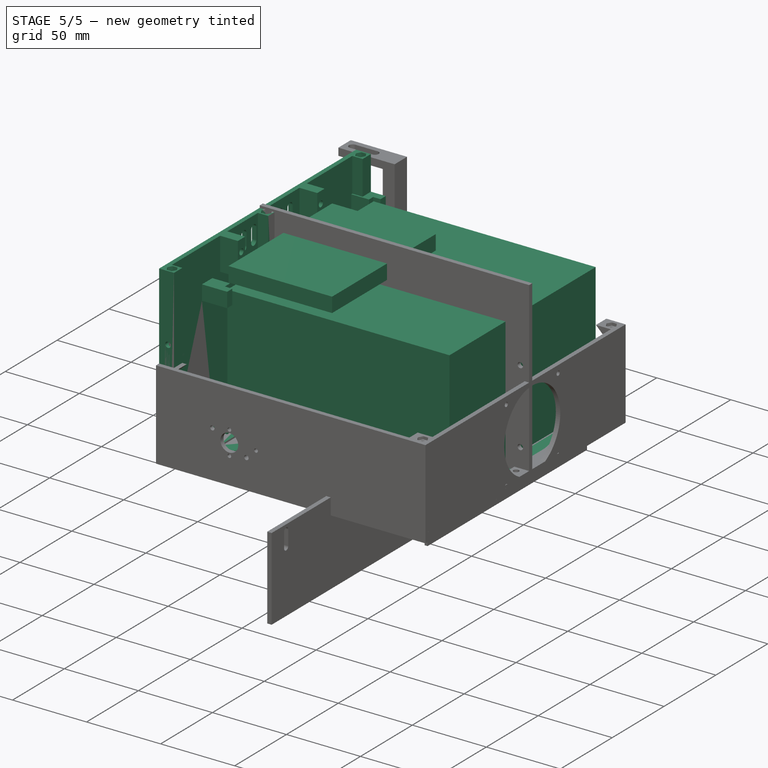
[diagram: stage 5 of 5 — iso view after this stage's code; geometry added in this stage tinted green]
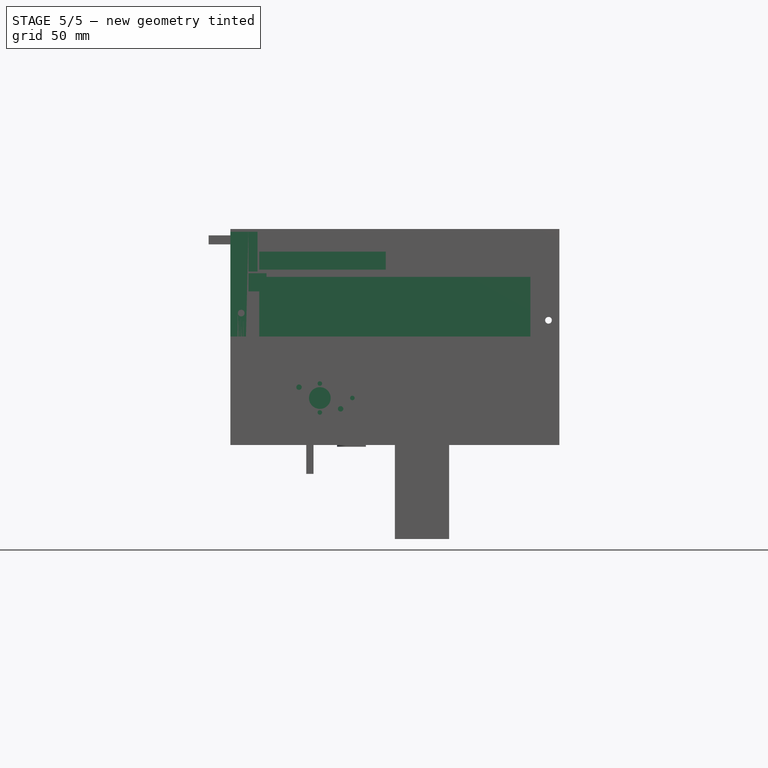
[diagram: stage 5 of 5 — front view after this stage's code; geometry added in this stage tinted green]
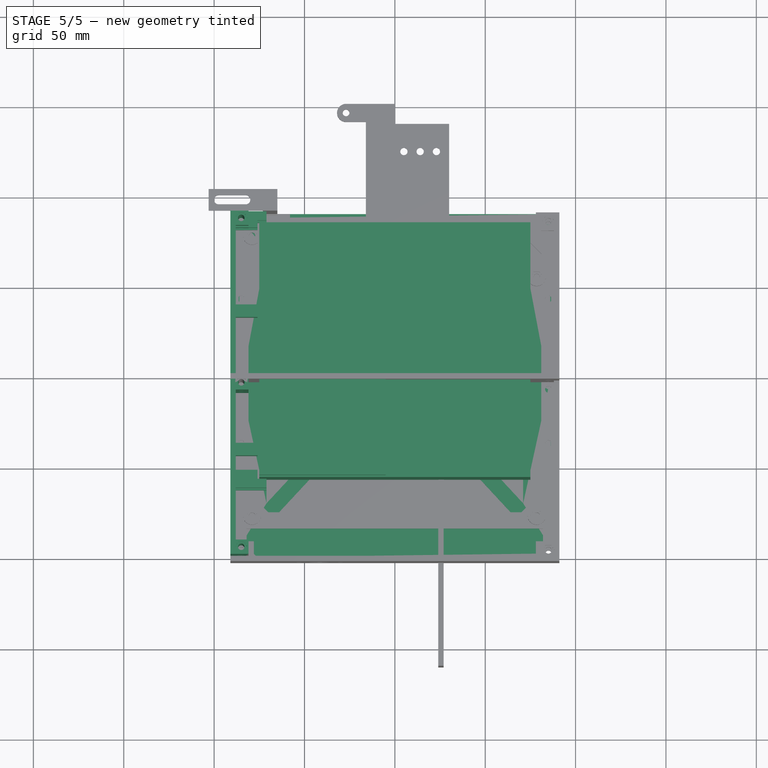
[diagram: stage 5 of 5 — top view after this stage's code; geometry added in this stage tinted green]
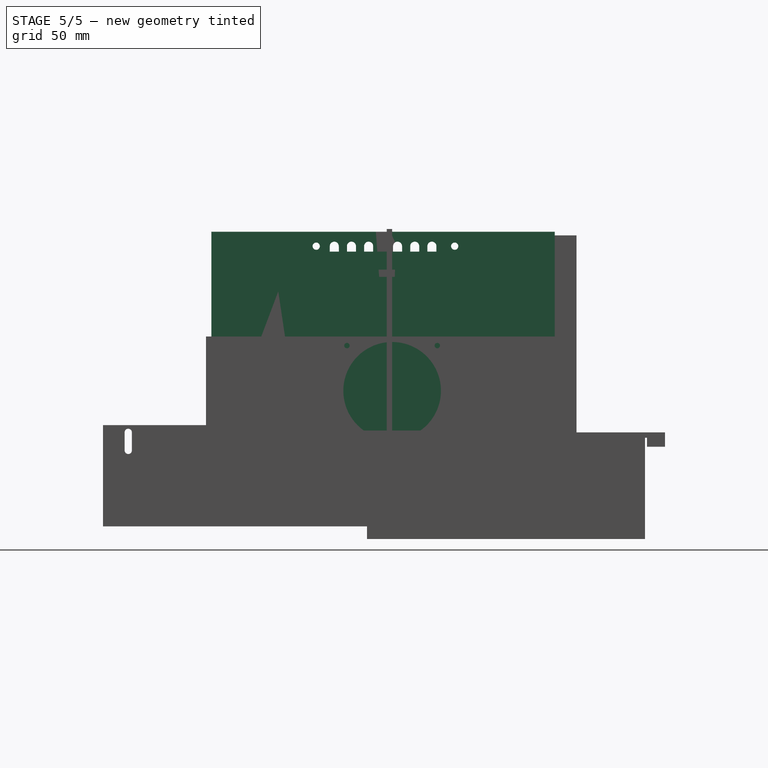
[diagram: stage 5 of 5 — right view after this stage's code; geometry added in this stage tinted green]
FEATURE [Sketcher::SketchObject] Sketch  label="psu-outline"
  AttachmentOffset = pos=(0,13.5,8) rot=(0,0,1;0rad)
  FullyConstrained = true
  MapMode = 5
  Placement = pos=(0,13.5,8) rot=(0,0,1;0rad)
  Support = -> [XY_Plane]
  sketch-geometry (4):
    g0: LineSegment StartX=-75 StartY=70.5 StartZ=0 EndX=75 EndY=70.5 EndZ=0
    g1: LineSegment StartX=75 StartY=70.5 StartZ=0 EndX=75 EndY=-70.5 EndZ=0
    g2: LineSegment StartX=75 StartY=-70.5 StartZ=0 EndX=-75 EndY=-70.5 EndZ=0
    g3: LineSegment StartX=-75 StartY=-70.5 StartZ=0 EndX=-75 EndY=70.5 EndZ=0
  constraints (10):
    c: Coincident(g0,g1)
    c: Coincident(g1,g2)
    c: Coincident(g2,g3)
    c: Coincident(g3,g0)
    c: Horizontal(g2)
    c: Vertical(g3)
    c: Symmetric(g1,g0,g-1)
    c: Symmetric(g0,g0,g-2)
    c: DistanceY(g1,g1) = 141
    c: DistanceX(g0,g0) = 150
FEATURE [Sketcher::SketchObject] Sketch001
  FullyConstrained = true
  MapMode = 5
  Support = -> [XY_Plane]
  sketch-geometry (16):
    g0: LineSegment StartX=-91 StartY=90 StartZ=0 EndX=91 EndY=90 EndZ=0
    g1: LineSegment StartX=91 StartY=90 StartZ=0 EndX=91 EndY=-100 EndZ=0
    g2: LineSegment StartX=91 StartY=-100 StartZ=0 EndX=-91 EndY=-100 EndZ=0
    g3: LineSegment StartX=-91 StartY=-100 StartZ=0 EndX=-91 EndY=90 EndZ=0
    g4: LineSegment StartX=-65 StartY=76 StartZ=0 EndX=-1.563e-13 EndY=6 EndZ=0
    g5: LineSegment StartX=-1.563e-13 StartY=6 StartZ=0 EndX=65 EndY=76 EndZ=0
    g6: LineSegment StartX=65 StartY=76 StartZ=0 EndX=-65 EndY=76 EndZ=0
    g7: LineSegment StartX=-71 StartY=70 StartZ=0 EndX=-6 EndY=0 EndZ=0
    g8: LineSegment StartX=-6 StartY=0 StartZ=0 EndX=-71 EndY=-70 EndZ=0
    g9: LineSegment StartX=-71 StartY=-70 StartZ=0 EndX=-71 EndY=70 EndZ=0
    g10: LineSegment StartX=-65 StartY=-76 StartZ=0 EndX=0 EndY=-6 EndZ=0
    g11: LineSegment StartX=0 StartY=-6 StartZ=0 EndX=65 EndY=-76 EndZ=0
    g12: LineSegment StartX=65 StartY=-76 StartZ=0 EndX=-65 EndY=-76 EndZ=0
    g13: LineSegment StartX=71 StartY=-70 StartZ=0 EndX=6 EndY=0 EndZ=0
    g14: LineSegment StartX=6 StartY=0 StartZ=0 EndX=71 EndY=70 EndZ=0
    g15: LineSegment StartX=71 StartY=70 StartZ=0 EndX=71 EndY=-70 EndZ=0
  constraints (45):
    c: Coincident(g0,g1)
    c: Coincident(g1,g2)
    c: Coincident(g2,g3)
    c: Coincident(g3,g0)
    c: Horizontal(g2)
    c: Vertical(g3)
    c: Symmetric(g0,g0,g-2)
    c: DistanceY(g1,g1) = 190
    c: DistanceX(g0,g0) = 182
    c: DistanceY(g-1,g0) = 90
    c: Vertical(g1)
    c: Coincident(g4,g5)
    c: Coincident(g5,g6)
    c: Coincident(g6,g4)
    c: Horizontal(g6)
    c: PointOnObject(g7,g-1)
    c: Coincident(g7,g8)
    c: Coincident(g8,g9)
    c: Coincident(g9,g7)
    c: Vertical(g9)
    c: PointOnObject(g10,g-2)
    c: Coincident(g10,g11)
    c: Coincident(g11,g12)
    c: Coincident(g12,g10)
    c: Horizontal(g12)
    c: Coincident(g13,g14)
    c: Coincident(g14,g15)
    c: Coincident(g15,g13)
    c: Vertical(g15)
    c: Parallel(g14,g5)
    c: Parallel(g5,g8)
    c: Parallel(g8,g10)
    c: Equal(g10,g11)
    c: Equal(g11,g5)
    c: Equal(g5,g4)
    c: Symmetric(g10,g4,g-1)
    c: Symmetric(g13,g7,g-1)
    c: Equal(g14,g13)
    c: Equal(g13,g8)
    c: Equal(g8,g7)
    c: DistanceX(g7,g13) = 12
    c: DistanceY(g10,g4) = 12
    c: DistanceY(g9,g9) = 140
    c: DistanceX(g6,g6) = 130
    c: Equal(g14,g5)
FEATURE [Sketcher::SketchObject] Sketch139  label="lubang-std-mobo003"
  FullyConstrained = false
  MapMode = 5
  expr: Constraints[15] = 6.1in - 0.9in
  sketch-geometry (11):
    g0: Circle CenterX=-124.72 CenterY=78 CenterZ=0 NormalX=0 NormalY=0 NormalZ=1 AngleXU=0 Radius=1.75
    g1: Circle CenterX=-79 CenterY=78 CenterZ=0 NormalX=0 NormalY=0 NormalZ=1 AngleXU=0 Radius=1.75
    g2: Circle CenterX=-145.04 CenterY=-76.94 CenterZ=0 NormalX=0 NormalY=0 NormalZ=1 AngleXU=0 Radius=1.75
    g3: Circle CenterX=-79 CenterY=-76.94 CenterZ=0 NormalX=0 NormalY=0 NormalZ=1 AngleXU=0 Radius=1.75
    g4: Circle CenterX=78.48 CenterY=-76.94 CenterZ=0 NormalX=0 NormalY=0 NormalZ=1 AngleXU=0 Radius=1.75
    g5: Circle CenterX=78.48 CenterY=55.14 CenterZ=0 NormalX=0 NormalY=0 NormalZ=1 AngleXU=0 Radius=1.75
    g6: LineSegment StartX=-91 StartY=90 StartZ=0 EndX=91 EndY=90 EndZ=0
    g7: LineSegment StartX=91 StartY=90 StartZ=0 EndX=91 EndY=-90 EndZ=0
    g8: LineSegment StartX=91 StartY=-90 StartZ=0 EndX=-91 EndY=-90 EndZ=0
    g9: LineSegment StartX=-91 StartY=-90 StartZ=0 EndX=-91 EndY=90 EndZ=0
    g10: GeomPoint X=0 Y=90 Z=0
  constraints (31):
    c: Equal(g0,g1)
    c: Equal(g1,g2)
    c: Equal(g2,g3)
    c: Equal(g3,g4)
    c: Diameter(g0) = 3.5
    c: DistanceX(g0,g1) = 45.72
    c: Horizontal(g0,g1)
    c: Vertical(g1,g3)
    c: DistanceY(g3,g1) = 154.94
    c: Horizontal(g2,g3)
    c: DistanceX(g2,g3) = 66.04
    c: Equal(g4,g5)
    c: Horizontal(g4,g3)
    c: DistanceX(g0,g4) = 203.2
    c: Vertical(g4,g5)
    c: DistanceY(g4,g5) = 132.08
    c: Coincident(g6,g7)
    c: Coincident(g7,g8)
    c: Coincident(g8,g9)
    c: Coincident(g9,g6)
    c: Horizontal(g6)
    c: Horizontal(g8)
    c: Vertical(g9)
    c: DistanceX(g6,g6) = 182
    c: DistanceY(g7,g7) = 180
    c: DistanceX(g6,g1) = 12
    c: DistanceY(g1,g6) = 12
    c: Vertical(g7)
    c: Symmetric(g6,g6,g10)
    c: PointOnObject(g10,g-2)
    c: DistanceY(g-1,g10) = 90
FEATURE [Sketcher::SketchObject] Sketch140  label="lubang-std-mobo004"
  FullyConstrained = true
  MapMode = 5
  expr: Constraints[15] = 6.1in - 0.9in
  sketch-geometry (11):
    g0: Circle CenterX=-124.72 CenterY=78 CenterZ=0 NormalX=0 NormalY=0 NormalZ=1 AngleXU=0 Radius=3.5
    g1: Circle CenterX=-79 CenterY=78 CenterZ=0 NormalX=0 NormalY=0 NormalZ=1 AngleXU=0 Radius=3.5
    g2: Circle CenterX=-145.04 CenterY=-76.94 CenterZ=0 NormalX=0 NormalY=0 NormalZ=1 AngleXU=0 Radius=3.5
    g3: Circle CenterX=-79 CenterY=-76.94 CenterZ=0 NormalX=0 NormalY=0 NormalZ=1 AngleXU=0 Radius=3.5
    g4: Circle CenterX=78.48 CenterY=-76.94 CenterZ=0 NormalX=0 NormalY=0 NormalZ=1 AngleXU=0 Radius=3.5
    g5: Circle CenterX=78.48 CenterY=55.14 CenterZ=0 NormalX=0 NormalY=0 NormalZ=1 AngleXU=0 Radius=3.5
    g6: LineSegment StartX=-91 StartY=90 StartZ=0 EndX=91 EndY=90 EndZ=0
    g7: LineSegment StartX=91 StartY=90 StartZ=0 EndX=91 EndY=-90 EndZ=0
    g8: LineSegment StartX=91 StartY=-90 StartZ=0 EndX=-91 EndY=-90 EndZ=0
    g9: LineSegment StartX=-91 StartY=-90 StartZ=0 EndX=-91 EndY=90 EndZ=0
    g10: GeomPoint X=0 Y=90 Z=0
  constraints (31):
    c: Equal(g0,g1)
    c: Equal(g1,g2)
    c: Equal(g2,g3)
    c: Equal(g3,g4)
    c: Diameter(g0) = 7
    c: DistanceX(g0,g1) = 45.72
    c: Horizontal(g0,g1)
    c: Vertical(g1,g3)
    c: DistanceY(g3,g1) = 154.94
    c: Horizontal(g2,g3)
    c: DistanceX(g2,g3) = 66.04
    c: Equal(g4,g5)
    c: Horizontal(g4,g3)
    c: DistanceX(g0,g4) = 203.2
    c: Vertical(g4,g5)
    c: DistanceY(g4,g5) = 132.08
    c: Coincident(g6,g7)
    c: Coincident(g7,g8)
    c: Coincident(g8,g9)
    c: Coincident(g9,g6)
    c: Horizontal(g6)
    c: Horizontal(g8)
    c: Vertical(g9)
    c: DistanceX(g6,g6) = 182
    c: DistanceY(g7,g7) = 180
    c: DistanceX(g6,g1) = 12
    c: DistanceY(g1,g6) = 12
    c: Vertical(g7)
    c: Symmetric(g6,g6,g10)
    c: PointOnObject(g10,g-2)
    c: DistanceY(g-1,g10) = 90
FEATURE [PartDesign::Pad] Pad
  AllowMultiFace = false
  Direction = (1,1,1)
  Length = 4
  Length2 = 100
  Profile = -> Sketch001
  Type = 0
FEATURE [Sketcher::SketchObject] Sketch148  label="psu-outline001"
  AttachmentOffset = pos=(0,13.5,8) rot=(0,0,1;0rad)
  FullyConstrained = true
  MapMode = 5
  Placement = pos=(0,13.5,8) rot=(0,0,1;0rad)
  Support = -> [XY_Plane]
  sketch-geometry (4):
    g0: LineSegment StartX=-75 StartY=70.5 StartZ=0 EndX=75 EndY=70.5 EndZ=0
    g1: LineSegment StartX=75 StartY=70.5 StartZ=0 EndX=75 EndY=-70.5 EndZ=0
    g2: LineSegment StartX=75 StartY=-70.5 StartZ=0 EndX=-75 EndY=-70.5 EndZ=0
    g3: LineSegment StartX=-75 StartY=-70.5 StartZ=0 EndX=-75 EndY=70.5 EndZ=0
  constraints (10):
    c: Coincident(g0,g1)
    c: Coincident(g1,g2)
    c: Coincident(g2,g3)
    c: Coincident(g3,g0)
    c: Horizontal(g2)
    c: Vertical(g3)
    c: Symmetric(g1,g0,g-1)
    c: Symmetric(g0,g0,g-2)
    c: DistanceY(g1,g1) = 141
    c: DistanceX(g0,g0) = 150
FEATURE [PartDesign::Pad] Pad006
  Direction = (1,1,1)
  Length = 85
  Length2 = 100
  Profile = -> Sketch148
  Type = 0
FEATURE [Sketcher::SketchObject] Sketch149
  FullyConstrained = true
  MapMode = 5
  Support = -> [XY_Plane003]
  sketch-geometry (4):
    g0: LineSegment StartX=-35 StartY=50 StartZ=0 EndX=35 EndY=50 EndZ=0
    g1: LineSegment StartX=35 StartY=50 StartZ=0 EndX=35 EndY=-50 EndZ=0
    g2: LineSegment StartX=35 StartY=-50 StartZ=0 EndX=-35 EndY=-50 EndZ=0
    g3: LineSegment StartX=-35 StartY=-50 StartZ=0 EndX=-35 EndY=50 EndZ=0
  constraints (10):
    c: Coincident(g0,g1)
    c: Coincident(g1,g2)
    c: Coincident(g2,g3)
    c: Coincident(g3,g0)
    c: Horizontal(g2)
    c: Vertical(g3)
    c: DistanceY(g1,g1) = 100
    c: DistanceX(g0,g0) = 70
    c: Symmetric(g1,g0,g-1)
    c: Symmetric(g0,g0,g-2)
FEATURE [PartDesign::Pad] Pad007
  Direction = (1,1,1)
  Length = 10
  Length2 = 100
  Profile = -> Sketch149
  Type = 0
FEATURE [Part::Mirroring] mirror001  label="ssd2.5 (mirrored)"
  Base = (1.52588e-05,-6,102)
  Normal = (1,0,-1.19209e-07)
  Source = -> Body004
FEATURE [Sketcher::SketchObject] Sketch151
  FullyConstrained = true
  MapMode = 5
  Placement = pos=(0,0,0) rot=(0.57735,0.57735,0.57735;2.0944rad)
  Support = -> [YZ_Plane002]
  sketch-geometry (9):
    g0: Circle CenterX=-42 CenterY=92 CenterZ=0 NormalX=0 NormalY=0 NormalZ=1 AngleXU=0 Radius=2
    g1: Circle CenterX=34.6 CenterY=92 CenterZ=0 NormalX=0 NormalY=0 NormalZ=1 AngleXU=0 Radius=2
    g2: Circle CenterX=-42 CenterY=102 CenterZ=0 NormalX=0 NormalY=0 NormalZ=1 AngleXU=0 Radius=2
    g3: Circle CenterX=34.6 CenterY=102 CenterZ=0 NormalX=0 NormalY=0 NormalZ=1 AngleXU=0 Radius=2
    g4: LineSegment StartX=-42 StartY=102 StartZ=0 EndX=34.6 EndY=102 EndZ=0
    g5: LineSegment StartX=34.6 StartY=102 StartZ=0 EndX=34.6 EndY=92 EndZ=0
    g6: LineSegment StartX=34.6 StartY=92 StartZ=0 EndX=-42 EndY=92 EndZ=0
    g7: LineSegment StartX=-42 StartY=92 StartZ=0 EndX=-42 EndY=102 EndZ=0
    g8: GeomPoint X=-56 Y=89 Z=0
  constraints (22):
    c: Coincident(g4,g5)
    c: Coincident(g5,g6)
    c: Coincident(g6,g7)
    c: Coincident(g7,g4)
    c: Horizontal(g4)
    c: Horizontal(g6)
    c: Vertical(g5)
    c: Vertical(g7)
    c: Coincident(g4,g2)
    c: Coincident(g5,g1)
    c: Coincident(g4,g3)
    c: Coincident(g0,g6)
    c: DistanceY(g7,g7) = 10
    c: Equal(g0,g1)
    c: Equal(g1,g2)
    c: Equal(g2,g3)
    c: Diameter(g0) = 4
    c: DistanceX(g8) = -56
    c: DistanceY(g8) = 89
    c: DistanceX(g8,g0) = 14
    c: DistanceX(g8,g1) = 90.6
    c: DistanceY(g8,g0) = 3
FEATURE [PartDesign::Pocket] Pocket001  label="holderssd-hole"
  BaseFeature = -> Pad008
  Length = 5
  Length2 = 100
  Midplane = true
  Placement = pos=(0,0,0) rot=(0.57735,0.57735,0.57735;2.0944rad)
  Profile = -> Sketch151
  Type = 1
FEATURE [App::DocumentObjectGroup] Group001  label="labels"
  Group = -> [Text,Text001]
FEATURE [Sketcher::SketchObject] Sketch152
  AttachmentOffset = pos=(0,0,110) rot=(0,0,1;0rad)
  FullyConstrained = true
  MapMode = 5
  Placement = pos=(0,0,110) rot=(0,0,1;0rad)
  Support = -> [XY_Plane002]
  sketch-geometry (7):
    g0: LineSegment StartX=-4.64545 StartY=83.15 StartZ=0 EndX=-1.35455 EndY=83.15 EndZ=0
    g1: LineSegment StartX=-1.35455 StartY=83.15 StartZ=0 EndX=0.290897 EndY=86 EndZ=0
    g2: LineSegment StartX=0.290897 StartY=86 StartZ=0 EndX=-1.35455 EndY=88.85 EndZ=0
    g3: LineSegment StartX=-1.35455 StartY=88.85 StartZ=0 EndX=-4.64545 EndY=88.85 EndZ=0
    g4: LineSegment StartX=-4.64545 StartY=88.85 StartZ=0 EndX=-6.2909 EndY=86 EndZ=0
    g5: LineSegment StartX=-6.2909 StartY=86 StartZ=0 EndX=-4.64545 EndY=83.15 EndZ=0
    g6: Circle CenterX=-3 CenterY=86 CenterZ=0 NormalX=0 NormalY=0 NormalZ=1 AngleXU=0 Radius=3.2909
  constraints (17):
    c: Coincident(g0,g1)
    c: Coincident(g1,g2)
    c: Coincident(g2,g3)
    c: Coincident(g3,g4)
    c: Coincident(g4,g5)
    c: Coincident(g5,g0)
    c: Equal(g0, g1-g5) x5
    c: PointOnObject(g0,g6)
    c: PointOnObject(g1,g6)
    c: PointOnObject(g2,g6)
    c: PointOnObject(g3,g6)
    c: PointOnObject(g4,g6)
    c: PointOnObject(g5,g6)
    c: DistanceY(g6) = 86
    c: DistanceX(g6) = -3
    c: Horizontal(g0)
    c: DistanceY(g0,g2) = 5.7
FEATURE [PartDesign::Pocket] Pocket002  label="hextop"
  BaseFeature = -> Pocket001
  Length = 3
  Length2 = 100
  Placement = pos=(0,0,0) rot=(0.57735,0.57735,0.57735;2.0944rad)
  Profile = -> Sketch152
  Type = 0
FEATURE [PartDesign::LinearPattern] LinearPattern003
  BaseFeature = -> Pocket002
  Direction = -> Y_Axis002
  Length = 182
  Occurrences = 3
  Originals = -> [Pocket002]
  Placement = pos=(0,0,0) rot=(0.57735,0.57735,0.57735;2.0944rad)
  Reversed = true
FEATURE [Sketcher::SketchObject] Sketch153
  AttachmentOffset = pos=(0,0,3) rot=(0,0,1;0rad)
  FullyConstrained = true
  MapMode = 5
  Placement = pos=(3,-7e-16,7e-16) rot=(0.57735,0.57735,0.57735;2.0944rad)
  Support = -> [YZ_Plane002]
  sketch-geometry (8):
    g0: ArcOfCircle CenterX=-32 CenterY=102 CenterZ=0 NormalX=0 NormalY=0 NormalZ=1 AngleXU=0 Radius=2.5 StartAngle=7.2246e-12 EndAngle=3.14159
    g1: ArcOfCircle CenterX=-32 CenterY=94 CenterZ=0 NormalX=0 NormalY=0 NormalZ=1 AngleXU=0 Radius=2.5 StartAngle=3.14159 EndAngle=6.28319
    g2: LineSegment StartX=-34.5 StartY=102 StartZ=0 EndX=-34.5 EndY=94 EndZ=0
    g3: LineSegment StartX=-29.5 StartY=102 StartZ=0 EndX=-29.5 EndY=94 EndZ=0
    g4: ArcOfCircle CenterX=3 CenterY=102 CenterZ=0 NormalX=0 NormalY=0 NormalZ=1 AngleXU=0 Radius=2.5 StartAngle=7e-16 EndAngle=3.14159
    g5: ArcOfCircle CenterX=3 CenterY=94 CenterZ=0 NormalX=0 NormalY=0 NormalZ=1 AngleXU=0 Radius=2.5 StartAngle=3.14159 EndAngle=6.28319
    g6: LineSegment StartX=0.5 StartY=102 StartZ=0 EndX=0.5 EndY=94 EndZ=0
    g7: LineSegment StartX=5.5 StartY=102 StartZ=0 EndX=5.5 EndY=94 EndZ=0
  constraints (20):
    c: Tangent(g0,g3) = 1.5708
    c: Tangent(g0,g2) = -1.5708
    c: Tangent(g2,g1) = -1.5708
    c: Tangent(g3,g1) = 1.5708
    c: Vertical(g2)
    c: Equal(g0,g1)
    c: Tangent(g4,g7) = 1.5708
    c: Tangent(g4,g6) = -1.5708
    c: Tangent(g6,g5) = -1.5708
    c: Tangent(g7,g5) = 1.5708
    c: Vertical(g6)
    c: Equal(g4,g5)
    c: Equal(g3,g6)
    c: Equal(g0,g4)
    c: DistanceY(g3,g3) = 8
    c: Diameter(g1) = 5
    c: Horizontal(g1,g5)
    c: DistanceY(g1) = 94
    c: DistanceX(g1) = -32
    c: DistanceX(g0,g4) = 35
FEATURE [PartDesign::Pocket] Pocket003  label="lubangangin"
  BaseFeature = -> LinearPattern003
  Length = 5
  Length2 = 100
  Placement = pos=(0,0,0) rot=(0.57735,0.57735,0.57735;2.0944rad)
  Profile = -> Sketch153
  Type = 1
FEATURE [PartDesign::LinearPattern] LinearPattern004
  BaseFeature = -> Pocket003
  Direction = -> Sketch153 [H_Axis]
  Length = 19
  Occurrences = 3
  Originals = -> [Pocket003]
  Placement = pos=(0,0,0) rot=(0.57735,0.57735,0.57735;2.0944rad)
FEATURE [Sketcher::SketchObject] Sketch154
  AttachmentOffset = pos=(0,0,130) rot=(0,0,1;0rad)
  FullyConstrained = true
  MapMode = 5
  Placement = pos=(0,0,130) rot=(0,0,1;0rad)
  Support = -> [XY_Plane]
  sketch-geometry (2):
    g0: Circle CenterX=-85 CenterY=86 CenterZ=0 NormalX=0 NormalY=0 NormalZ=1 AngleXU=0 Radius=1.85
    g1: Circle CenterX=85 CenterY=86 CenterZ=0 NormalX=0 NormalY=0 NormalZ=1 AngleXU=0 Radius=1.85
  constraints (5):
    c: DistanceY(g0) = 86
    c: Equal(g0,g1)
    c: Diameter(g0) = 3.7
    c: Symmetric(g1,g0,g-2)
    c: DistanceX(g0,g1) = 170
FEATURE [PartDesign::Pocket] Pocket004  label="lubangmount"
  BaseFeature = -> Pad
  Length = 5
  Length2 = 100
  Profile = -> Sketch154
  Type = 1
FEATURE [PartDesign::LinearPattern] LinearPattern005
  BaseFeature = -> Pocket004
  Direction = -> Sketch154 [V_Axis]
  Length = 182
  Occurrences = 3
  Originals = -> [Pocket004]
  Reversed = true
FEATURE [Sketcher::SketchObject] Sketch155
  AttachmentOffset = pos=(0,0,100) rot=(0,0,1;0rad)
  FullyConstrained = true
  MapMode = 5
  Placement = pos=(0,-100,-2.22e-14) rot=(1,0,0;1.5708rad)
  Support = -> [XZ_Plane002]
  sketch-geometry (2):
    g0: Circle CenterX=-3 CenterY=15 CenterZ=0 NormalX=0 NormalY=0 NormalZ=1 AngleXU=0 Radius=1.85
    g1: Circle CenterX=-3 CenterY=65 CenterZ=0 NormalX=0 NormalY=0 NormalZ=1 AngleXU=0 Radius=1.85
  constraints (6):
    c: DistanceY(g0,g1) = 50
    c: Diameter(g0) = 3.7
    c: Equal(g0,g1)
    c: Vertical(g0,g1)
    c: DistanceX(g0) = -3
    c: DistanceY(g0) = 15
FEATURE [PartDesign::Pocket] Pocket005  label="sekrupsamping"
  BaseFeature = -> LinearPattern004
  Length = 5
  Length2 = 100
  Placement = pos=(0,0,0) rot=(0.57735,0.57735,0.57735;2.0944rad)
  Profile = -> Sketch155
  Type = 1
FEATURE [PartDesign::Body] Body002  label="psuwalls-and-ssdmount"
  Group = -> [Sketch144,Pad003,Sketch145,Pad004,LinearPattern,Sketch146,Pocket,LinearPattern001,Sketch147,Pad005,LinearPattern002,Sketch150,Pad008,Sketch151,Pocket001,Sketch152,Pocket002,LinearPattern003,Sketch153,Pocket003,LinearPattern004,Sketch155,Pocket005]
  Origin = -> Origin002
  Placement = pos=(88,0,8) rot=(0,0,1;0rad)
  Tip = -> Pocket005
FEATURE [Part::Mirroring] mirror  label="psuwalls-and-ssdmount (mirrored)"
  Base = (0,0,0)
  Normal = (1,0,0)
  Source = -> Body002
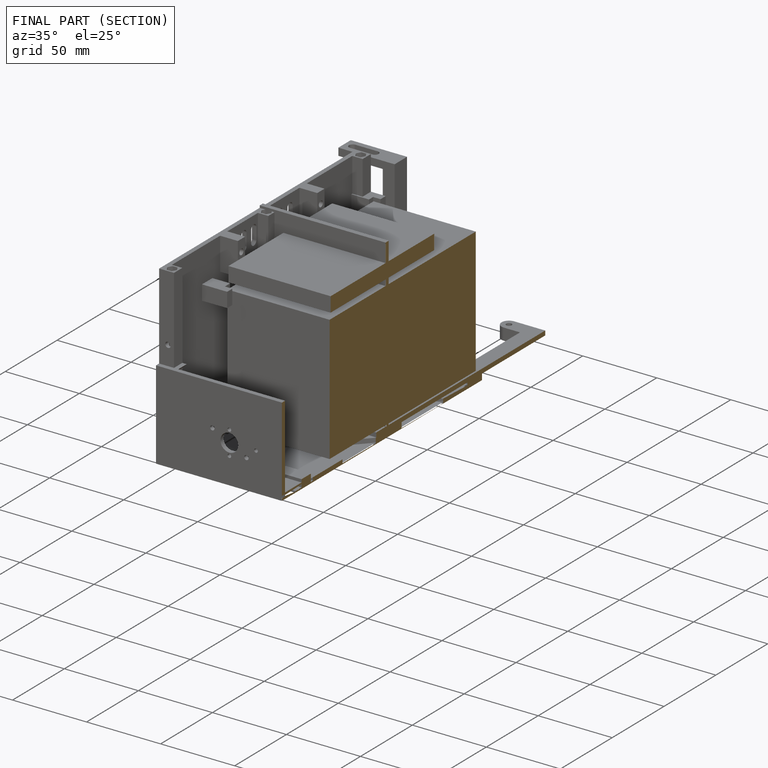
[diagram: finished part — half-section view (interior)]
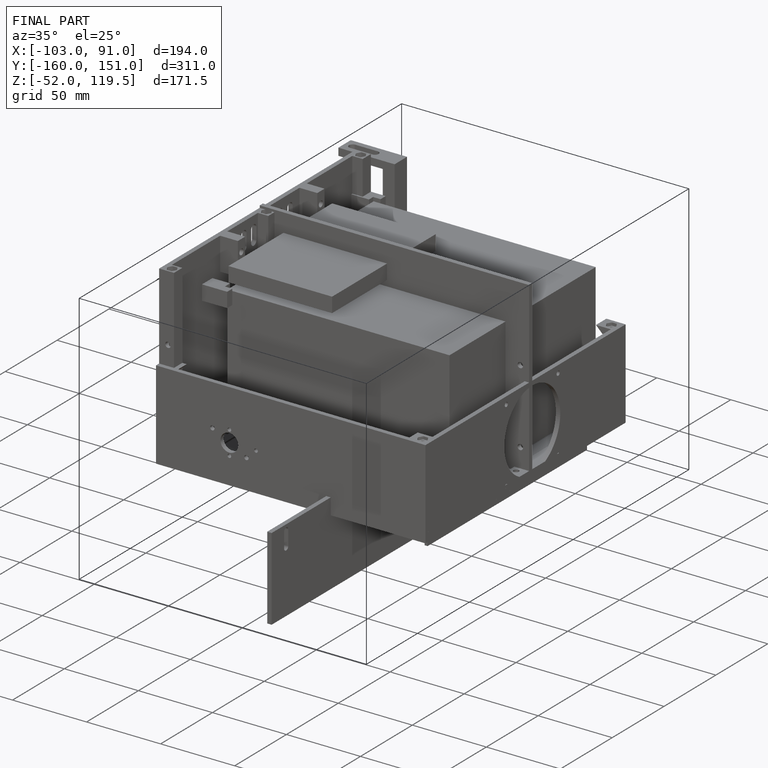
[diagram: finished part — iso view with bounding-box wireframe]
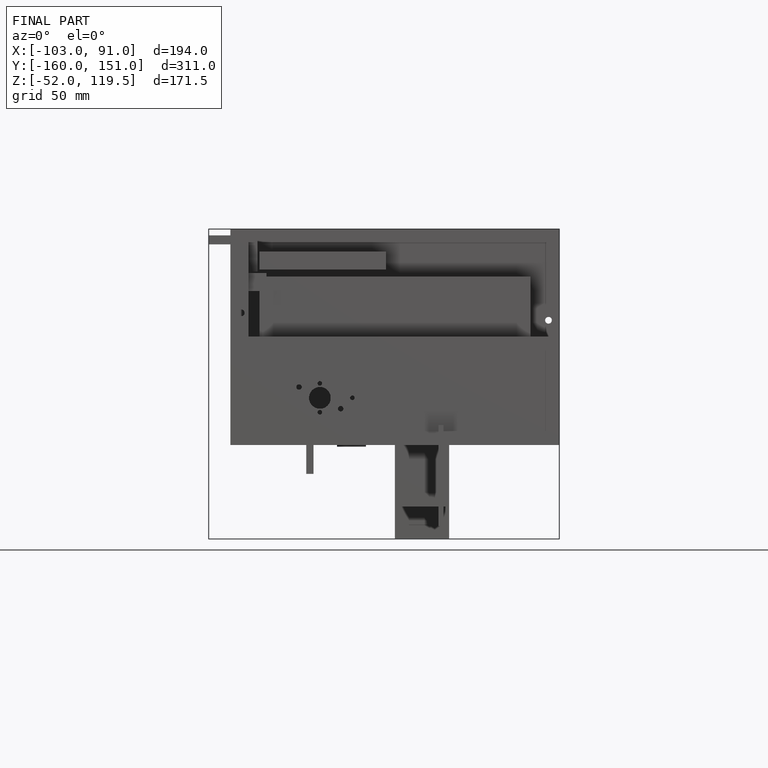
[diagram: finished part — front view with bounding-box wireframe]
